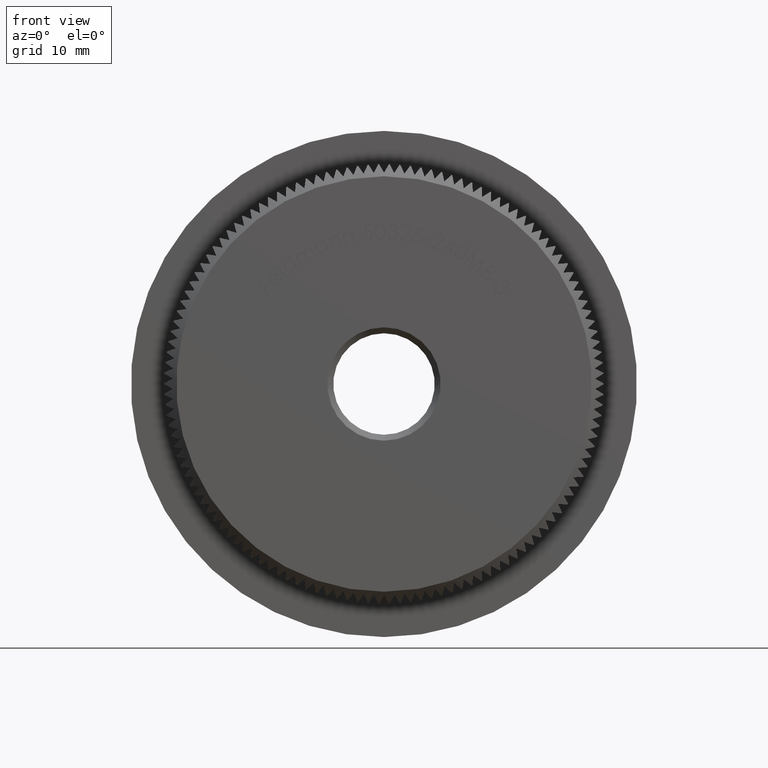
[diagram: clean part render]
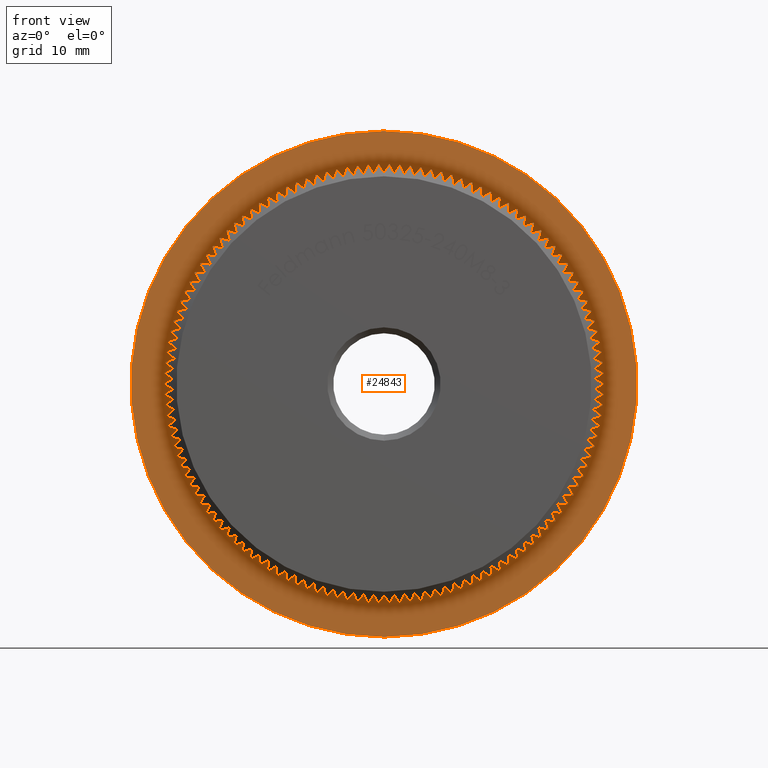
[diagram: same view with one face highlighted and labeled with its STEP entity id]
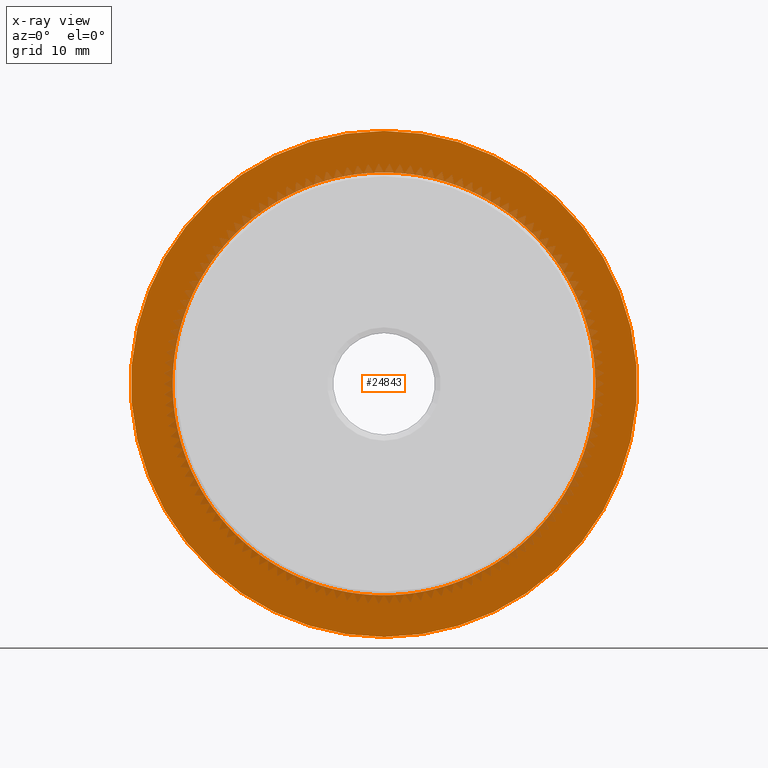
[diagram: x-ray of the same camera — body ghosted, the highlighted face saturated]
A machine part, front view. The second image highlights one B-rep face of the part: STEP entity #24843.
The next image is the same camera in x-ray: the body ghosted, the highlighted face saturated — about 10% of this face is hidden behind the body in this view.
In plain terms, the highlighted planar face has unit normal (0, -1, -0).
Its self-contained STEP definition (entity closure, byte-faithful):
#5 = DIRECTION ( 'NONE',  ( -0.0000000000000000000, -1.000000000000000000, -0.0000000000000000000 ) ) ;
#16 = VERTEX_POINT ( 'NONE', #16508 ) ;
#54 = DIRECTION ( 'NONE',  ( 0.0000000000000000000, 0.0000000000000000000, -1.000000000000000000 ) ) ;
#130 = AXIS2_PLACEMENT_3D ( 'NONE', #10194, #12810, #30429 ) ;
#159 = DIRECTION ( 'NONE',  ( -0.0000000000000000000, -1.000000000000000000, -0.0000000000000000000 ) ) ;
#170 = VERTEX_POINT ( 'NONE', #32155 ) ;
#191 = AXIS2_PLACEMENT_3D ( 'NONE', #2901, #12937, #30867 ) ;
#220 = ORIENTED_EDGE ( 'NONE', *, *, #1867, .F. ) ;
#230 = AXIS2_PLACEMENT_3D ( 'NONE', #30510, #8056, #17849 ) ;
#232 = CIRCLE ( 'NONE', #191, 17.69999999999999900 ) ;
#245 = CARTESIAN_POINT ( 'NONE',  ( 0.0000000000000000000, 8.000000000000001800, 0.0000000000000000000 ) ) ;
#247 = ORIENTED_EDGE ( 'NONE', *, *, #31096, .F. ) ;
#252 = CARTESIAN_POINT ( 'NONE',  ( 0.0000000000000000000, 8.000000000000001800, 0.0000000000000000000 ) ) ;
#292 = CARTESIAN_POINT ( 'NONE',  ( 10.40379896557660000, 8.000000000000003600, 14.31960080043669600 ) ) ;
#293 = EDGE_CURVE ( 'NONE', #4475, #7590, #973, .T. ) ;
#324 = AXIS2_PLACEMENT_3D ( 'NONE', #2568, #17668, #20186 ) ;
#338 = DIRECTION ( 'NONE',  ( 0.0000000000000000000, 0.0000000000000000000, -1.000000000000000000 ) ) ;
#396 = VERTEX_POINT ( 'NONE', #30437 ) ;
#402 = CARTESIAN_POINT ( 'NONE',  ( 0.0000000000000000000, 8.000000000000001800, 0.0000000000000000000 ) ) ;
#403 = DIRECTION ( 'NONE',  ( 0.0000000000000000000, 0.0000000000000000000, -1.000000000000000000 ) ) ;
#437 = EDGE_CURVE ( 'NONE', #6900, #3211, #23421, .T. ) ;
#470 = CARTESIAN_POINT ( 'NONE',  ( 13.52838825366138500, 8.000000000000003600, 11.41370716543037600 ) ) ;
#603 = CIRCLE ( 'NONE', #28679, 17.69999999999999900 ) ;
#613 = CARTESIAN_POINT ( 'NONE',  ( -5.061238507656811200, 7.999999999999998200, 16.96095117523223900 ) ) ;
#654 = CARTESIAN_POINT ( 'NONE',  ( 0.0000000000000000000, 8.000000000000001800, 0.0000000000000000000 ) ) ;
#661 = AXIS2_PLACEMENT_3D ( 'NONE', #15793, #27783, #18314 ) ;
#663 = CARTESIAN_POINT ( 'NONE',  ( 2.557456177375347000, 7.999999999999992900, -17.51426327028358900 ) ) ;
#700 = AXIS2_PLACEMENT_3D ( 'NONE', #13397, #26049, #13186 ) ;
#741 = DIRECTION ( 'NONE',  ( 0.0000000000000000000, 0.0000000000000000000, -1.000000000000000000 ) ) ;
#769 = DIRECTION ( 'NONE',  ( 0.0000000000000000000, 0.0000000000000000000, -1.000000000000000000 ) ) ;
#788 = CIRCLE ( 'NONE', #4331, 17.69999999999999900 ) ;
#805 = CARTESIAN_POINT ( 'NONE',  ( 0.0000000000000000000, 8.000000000000003600, -17.69999999999999900 ) ) ;
#835 = CARTESIAN_POINT ( 'NONE',  ( 0.0000000000000000000, 8.000000000000001800, 0.0000000000000000000 ) ) ;
#836 = ORIENTED_EDGE ( 'NONE', *, *, #11688, .F. ) ;
#866 = DIRECTION ( 'NONE',  ( -0.0000000000000000000, -1.000000000000000000, -0.0000000000000000000 ) ) ;
#884 = DIRECTION ( 'NONE',  ( -0.0000000000000000000, -1.000000000000000000, -0.0000000000000000000 ) ) ;
#905 = VERTEX_POINT ( 'NONE', #21331 ) ;
#936 = AXIS2_PLACEMENT_3D ( 'NONE', #1174, #11212, #13728 ) ;
#969 = ORIENTED_EDGE ( 'NONE', *, *, #19693, .F. ) ;
#973 = CIRCLE ( 'NONE', #12586, 17.69999999999999900 ) ;
#1002 = AXIS2_PLACEMENT_3D ( 'NONE', #23574, #26405, #3634 ) ;
#1013 = ORIENTED_EDGE ( 'NONE', *, *, #16728, .F. ) ;
#1038 = AXIS2_PLACEMENT_3D ( 'NONE', #7170, #6838, #19275 ) ;
#1067 = ORIENTED_EDGE ( 'NONE', *, *, #28686, .F. ) ;
#1091 = CARTESIAN_POINT ( 'NONE',  ( 0.0000000000000000000, 8.000000000000001800, 0.0000000000000000000 ) ) ;
#1102 = DIRECTION ( 'NONE',  ( -0.0000000000000000000, -1.000000000000000000, -0.0000000000000000000 ) ) ;
#1125 = DIRECTION ( 'NONE',  ( 0.0000000000000000000, 0.0000000000000000000, -1.000000000000000000 ) ) ;
#1166 = CARTESIAN_POINT ( 'NONE',  ( -12.96115539878053000, 8.000000000000003600, -12.05398070052637700 ) ) ;
#1174 = CARTESIAN_POINT ( 'NONE',  ( 0.0000000000000000000, 8.000000000000001800, 0.0000000000000000000 ) ) ;
#1180 = CARTESIAN_POINT ( 'NONE',  ( 16.54978749553190200, 8.000000000000003600, -6.276506500652724100 ) ) ;
#1193 = CARTESIAN_POINT ( 'NONE',  ( 12.36365116490603500, 8.000000000000003600, 12.66610160517109000 ) ) ;
#1225 = CIRCLE ( 'NONE', #3124, 17.69999999999999900 ) ;
#1261 = CARTESIAN_POINT ( 'NONE',  ( 11.73727105086219100, 8.000000000000003600, -13.24864024262838800 ) ) ;
#1295 = CARTESIAN_POINT ( 'NONE',  ( 0.0000000000000000000, 8.000000000000001800, 0.0000000000000000000 ) ) ;
#1317 = EDGE_CURVE ( 'NONE', #15577, #3816, #11986, .T. ) ;
#1335 = DIRECTION ( 'NONE',  ( 0.0000000000000000000, 0.0000000000000000000, -1.000000000000000000 ) ) ;
#1354 = DIRECTION ( 'NONE',  ( 0.0000000000000000000, -1.000000000000000000, -0.0000000000000000000 ) ) ;
#1372 = VERTEX_POINT ( 'NONE', #5274 ) ;
#1393 = EDGE_LOOP ( 'NONE', ( #7443, #16120, #3215, #31671, #20010, #11306, #28163, #15723, #9013, #32528, #6269, #6959, #23960, #6004, #23208, #29699, #22758, #23748, #3286, #12375, #18120, #18890, #21818, #28894, #7337, #17576, #25637, #1650, #26101, #8167, #1067, #16100, #15487, #4313, #1013, #247, #17476, #23105, #8910, #29234, #29735, #3272, #30934, #2216, #9655, #969, #20831, #5874, #23848, #13402, #17290, #15746, #220, #14543, #1683, #1919, #6325, #8890, #2524, #31453, #4614, #7024, #11062, #12663, #24878, #10831, #11541, #10808, #20564, #13743, #23165, #4821, #32520, #12712, #3040, #13974, #9031, #12139, #8946, #12697, #26417, #3838, #14961, #836, #25117, #31465, #5904, #10481, #15857, #28431, #24731, #9017, #23797, #14147, #32564, #2153, #28666, #12952, #18944, #4150, #24461, #32130, #2116, #13102, #31799, #31351, #18988, #2433, #13661, #1406, #8779, #3899, #16391, #6627, #7413, #3642, #26310, #15819, #19944, #30049, #26445, #12832, #22484, #3903, #3083, #29123, #25926, #14452, #14622, #30143 ) ) ;
#1396 = CIRCLE ( 'NONE', #4119, 17.69999999999999900 ) ;
#1406 = ORIENTED_EDGE ( 'NONE', *, *, #18497, .F. ) ;
#1479 = CARTESIAN_POINT ( 'NONE',  ( 0.0000000000000000000, 8.000000000000001800, 0.0000000000000000000 ) ) ;
#1550 = CARTESIAN_POINT ( 'NONE',  ( -3.400642897160646600, 7.999999999999992900, 17.37025123266762000 ) ) ;
#1596 = DIRECTION ( 'NONE',  ( -0.0000000000000000000, -1.000000000000000000, -0.0000000000000000000 ) ) ;
#1608 = CIRCLE ( 'NONE', #19081, 17.69999999999999900 ) ;
#1650 = ORIENTED_EDGE ( 'NONE', *, *, #4626, .F. ) ;
#1677 = DIRECTION ( 'NONE',  ( -0.0000000000000000000, -1.000000000000000000, -0.0000000000000000000 ) ) ;
#1683 = ORIENTED_EDGE ( 'NONE', *, *, #13215, .F. ) ;
#1695 = CARTESIAN_POINT ( 'NONE',  ( 0.0000000000000000000, 8.000000000000001800, 0.0000000000000000000 ) ) ;
#1711 = DIRECTION ( 'NONE',  ( 0.0000000000000000000, 0.0000000000000000000, -1.000000000000000000 ) ) ;
#1794 = DIRECTION ( 'NONE',  ( -0.0000000000000000000, -1.000000000000000000, -0.0000000000000000000 ) ) ;
#1813 = AXIS2_PLACEMENT_3D ( 'NONE', #245, #25451, #27978 ) ;
#1832 = DIRECTION ( 'NONE',  ( -0.0000000000000000000, -1.000000000000000000, -0.0000000000000000000 ) ) ;
#1833 = CARTESIAN_POINT ( 'NONE',  ( 0.0000000000000000000, 8.000000000000001800, 0.0000000000000000000 ) ) ;
#1859 = CARTESIAN_POINT ( 'NONE',  ( 0.0000000000000000000, 8.000000000000001800, 0.0000000000000000000 ) ) ;
#1867 = EDGE_CURVE ( 'NONE', #14029, #21604, #20231, .T. ) ;
#1919 = ORIENTED_EDGE ( 'NONE', *, *, #11017, .F. ) ;
#1921 = AXIS2_PLACEMENT_3D ( 'NONE', #1695, #21848, #32102 ) ;
#1976 = CARTESIAN_POINT ( 'NONE',  ( 0.0000000000000000000, 8.000000000000001800, 0.0000000000000000000 ) ) ;
#1985 = EDGE_CURVE ( 'NONE', #11659, #6425, #21009, .T. ) ;
#2008 = CARTESIAN_POINT ( 'NONE',  ( 17.69483184921941200, 8.000000000000003600, 0.4276982906797280900 ) ) ;
#2073 = CARTESIAN_POINT ( 'NONE',  ( 0.0000000000000000000, 8.000000000000003600, 17.69999999999999900 ) ) ;
#2087 = CARTESIAN_POINT ( 'NONE',  ( 16.22722185710357600, 7.999999999999998200, -7.068753129112660200 ) ) ;
#2106 = DIRECTION ( 'NONE',  ( -0.0000000000000000000, -1.000000000000000000, -0.0000000000000000000 ) ) ;
#2116 = ORIENTED_EDGE ( 'NONE', *, *, #22963, .F. ) ;
#2130 = EDGE_CURVE ( 'NONE', #11053, #28156, #6051, .T. ) ;
#2132 = DIRECTION ( 'NONE',  ( 0.0000000000000000000, 0.0000000000000000000, -1.000000000000000000 ) ) ;
#2145 = CIRCLE ( 'NONE', #19032, 17.69999999999999900 ) ;
#2153 = ORIENTED_EDGE ( 'NONE', *, *, #28232, .F. ) ;
#2154 = CARTESIAN_POINT ( 'NONE',  ( 0.0000000000000000000, 8.000000000000001800, 0.0000000000000000000 ) ) ;
#2178 = CIRCLE ( 'NONE', #12303, 17.69999999999999900 ) ;
#2216 = ORIENTED_EDGE ( 'NONE', *, *, #7252, .F. ) ;
#2227 = DIRECTION ( 'NONE',  ( 0.0000000000000000000, 0.0000000000000000000, -1.000000000000000000 ) ) ;
#2327 = DIRECTION ( 'NONE',  ( 0.0000000000000000000, 0.0000000000000000000, -1.000000000000000000 ) ) ;
#2409 = VERTEX_POINT ( 'NONE', #9769 ) ;
#2433 = ORIENTED_EDGE ( 'NONE', *, *, #26224, .F. ) ;
#2437 = DIRECTION ( 'NONE',  ( 0.0000000000000000000, 0.0000000000000000000, -1.000000000000000000 ) ) ;
#2446 = VERTEX_POINT ( 'NONE', #9423 ) ;
#2477 = DIRECTION ( 'NONE',  ( -0.0000000000000000000, -1.000000000000000000, -0.0000000000000000000 ) ) ;
#2486 = VERTEX_POINT ( 'NONE', #17026 ) ;
#2523 = VERTEX_POINT ( 'NONE', #32673 ) ;
#2524 = ORIENTED_EDGE ( 'NONE', *, *, #26228, .F. ) ;
#2532 = DIRECTION ( 'NONE',  ( 0.0000000000000000000, 0.0000000000000000000, -1.000000000000000000 ) ) ;
#2552 = CARTESIAN_POINT ( 'NONE',  ( 0.0000000000000000000, 8.000000000000001800, 0.0000000000000000000 ) ) ;
#2566 = EDGE_CURVE ( 'NONE', #13757, #21930, #18235, .T. ) ;
#2569 = DIRECTION ( 'NONE',  ( -0.0000000000000000000, -1.000000000000000000, -0.0000000000000000000 ) ) ;
#2568 = CARTESIAN_POINT ( 'NONE',  ( 0.0000000000000000000, 8.000000000000001800, 0.0000000000000000000 ) ) ;
#2582 = CIRCLE ( 'NONE', #18990, 17.69999999999999900 ) ;
#2616 = EDGE_CURVE ( 'NONE', #18126, #12483, #13121, .T. ) ;
#2618 = CARTESIAN_POINT ( 'NONE',  ( 0.0000000000000000000, 8.000000000000001800, 0.0000000000000000000 ) ) ;
#2699 = AXIS2_PLACEMENT_3D ( 'NONE', #8738, #31509, #3552 ) ;
#2706 = DIRECTION ( 'NONE',  ( 0.0000000000000000000, 0.0000000000000000000, -1.000000000000000000 ) ) ;
#2736 = EDGE_CURVE ( 'NONE', #15381, #13168, #4870, .T. ) ;
#2751 = VERTEX_POINT ( 'NONE', #8955 ) ;
#2821 = AXIS2_PLACEMENT_3D ( 'NONE', #11637, #6795, #29230 ) ;
#2824 = VERTEX_POINT ( 'NONE', #24345 ) ;
#2853 = CARTESIAN_POINT ( 'NONE',  ( 0.0000000000000000000, 8.000000000000001800, 0.0000000000000000000 ) ) ;
#2901 = CARTESIAN_POINT ( 'NONE',  ( 0.0000000000000000000, 8.000000000000001800, 0.0000000000000000000 ) ) ;
#2905 = VERTEX_POINT ( 'NONE', #21813 ) ;
#2912 = CARTESIAN_POINT ( 'NONE',  ( 0.0000000000000000000, 8.000000000000001800, 0.0000000000000000000 ) ) ;
#3005 = EDGE_LOOP ( 'NONE', ( #7900, #8116 ) ) ;
#3040 = ORIENTED_EDGE ( 'NONE', *, *, #14261, .F. ) ;
#3067 = DIRECTION ( 'NONE',  ( -0.0000000000000000000, -1.000000000000000000, -0.0000000000000000000 ) ) ;
#3083 = ORIENTED_EDGE ( 'NONE', *, *, #12746, .F. ) ;
#3097 = EDGE_CURVE ( 'NONE', #13969, #10927, #12309, .T. ) ;
#3124 = AXIS2_PLACEMENT_3D ( 'NONE', #26009, #21065, #28432 ) ;
#3144 = AXIS2_PLACEMENT_3D ( 'NONE', #1859, #21668, #12109 ) ;
#3158 = CARTESIAN_POINT ( 'NONE',  ( 0.0000000000000000000, 8.000000000000001800, 0.0000000000000000000 ) ) ;
#3183 = EDGE_CURVE ( 'NONE', #16341, #29339, #5631, .T. ) ;
#3211 = VERTEX_POINT ( 'NONE', #31486 ) ;
#3215 = ORIENTED_EDGE ( 'NONE', *, *, #20549, .F. ) ;
#3218 = DIRECTION ( 'NONE',  ( 0.0000000000000000000, 0.0000000000000000000, -1.000000000000000000 ) ) ;
#3272 = ORIENTED_EDGE ( 'NONE', *, *, #17591, .F. ) ;
#3277 = CIRCLE ( 'NONE', #17312, 17.69999999999999900 ) ;
#3278 = DIRECTION ( 'NONE',  ( 0.0000000000000000000, 0.0000000000000000000, -1.000000000000000000 ) ) ;
#3285 = DIRECTION ( 'NONE',  ( 0.0000000000000000000, 0.0000000000000000000, -1.000000000000000000 ) ) ;
#3286 = ORIENTED_EDGE ( 'NONE', *, *, #19791, .F. ) ;
#3346 = DIRECTION ( 'NONE',  ( -0.0000000000000000000, -1.000000000000000000, -0.0000000000000000000 ) ) ;
#3367 = CIRCLE ( 'NONE', #1921, 17.69999999999999900 ) ;
#3383 = CARTESIAN_POINT ( 'NONE',  ( 17.28300709527815500, 8.000000000000007100, -3.819380282789998300 ) ) ;
#3406 = CARTESIAN_POINT ( 'NONE',  ( 0.0000000000000000000, 8.000000000000001800, 0.0000000000000000000 ) ) ;
#3484 = DIRECTION ( 'NONE',  ( -0.0000000000000000000, -1.000000000000000000, -0.0000000000000000000 ) ) ;
#3505 = DIRECTION ( 'NONE',  ( 0.0000000000000000000, 0.0000000000000000000, -1.000000000000000000 ) ) ;
#3552 = DIRECTION ( 'NONE',  ( 0.0000000000000000000, 0.0000000000000000000, -1.000000000000000000 ) ) ;
#3567 = EDGE_CURVE ( 'NONE', #8345, #5368, #1225, .T. ) ;
#3572 = AXIS2_PLACEMENT_3D ( 'NONE', #654, #866, #13314 ) ;
#3634 = DIRECTION ( 'NONE',  ( 0.0000000000000000000, 0.0000000000000000000, -1.000000000000000000 ) ) ;
#3642 = ORIENTED_EDGE ( 'NONE', *, *, #21777, .F. ) ;
#3651 = EDGE_CURVE ( 'NONE', #21868, #18064, #13061, .T. ) ;
#3703 = CIRCLE ( 'NONE', #25747, 17.69999999999999900 ) ;
#3784 = VERTEX_POINT ( 'NONE', #18759 ) ;
#3816 = VERTEX_POINT ( 'NONE', #17106 ) ;
#3823 = EDGE_CURVE ( 'NONE', #905, #20806, #11477, .T. ) ;
#3838 = ORIENTED_EDGE ( 'NONE', *, *, #30757, .F. ) ;
#3877 = DIRECTION ( 'NONE',  ( -0.0000000000000000000, -1.000000000000000000, -0.0000000000000000000 ) ) ;
#3899 = ORIENTED_EDGE ( 'NONE', *, *, #21506, .F. ) ;
#3903 = ORIENTED_EDGE ( 'NONE', *, *, #20499, .F. ) ;
#3918 = DIRECTION ( 'NONE',  ( 0.0000000000000000000, 0.0000000000000000000, -1.000000000000000000 ) ) ;
#3985 = CIRCLE ( 'NONE', #18889, 17.69999999999999900 ) ;
#4010 = DIRECTION ( 'NONE',  ( 0.0000000000000000000, 0.0000000000000000000, -1.000000000000000000 ) ) ;
#4060 = DIRECTION ( 'NONE',  ( -0.0000000000000000000, -1.000000000000000000, -0.0000000000000000000 ) ) ;
#4072 = AXIS2_PLACEMENT_3D ( 'NONE', #18670, #16247, #20983 ) ;
#4119 = AXIS2_PLACEMENT_3D ( 'NONE', #5825, #25933, #10895 ) ;
#4150 = ORIENTED_EDGE ( 'NONE', *, *, #17812, .F. ) ;
#4151 = DIRECTION ( 'NONE',  ( 0.0000000000000000000, 0.0000000000000000000, -1.000000000000000000 ) ) ;
#4188 = CIRCLE ( 'NONE', #32515, 17.69999999999999900 ) ;
#4191 = AXIS2_PLACEMENT_3D ( 'NONE', #1976, #4515, #22360 ) ;
#4204 = VERTEX_POINT ( 'NONE', #13080 ) ;
#4225 = DIRECTION ( 'NONE',  ( 0.0000000000000000000, 0.0000000000000000000, -1.000000000000000000 ) ) ;
#4239 = AXIS2_PLACEMENT_3D ( 'NONE', #17614, #25076, #14855 ) ;
#4250 = DIRECTION ( 'NONE',  ( 0.0000000000000000000, 0.0000000000000000000, -1.000000000000000000 ) ) ;
#4262 = DIRECTION ( 'NONE',  ( -0.0000000000000000000, -1.000000000000000000, -0.0000000000000000000 ) ) ;
#4277 = CIRCLE ( 'NONE', #23586, 17.69999999999999900 ) ;
#4297 = EDGE_CURVE ( 'NONE', #30553, #12365, #23270, .T. ) ;
#4313 = ORIENTED_EDGE ( 'NONE', *, *, #31660, .F. ) ;
#4331 = AXIS2_PLACEMENT_3D ( 'NONE', #29471, #11534, #4151 ) ;
#4364 = DIRECTION ( 'NONE',  ( 0.0000000000000000000, 0.0000000000000000000, -1.000000000000000000 ) ) ;
#4381 = EDGE_CURVE ( 'NONE', #30597, #19133, #22481, .T. ) ;
#4422 = EDGE_CURVE ( 'NONE', #31791, #10990, #6322, .T. ) ;
#4475 = VERTEX_POINT ( 'NONE', #29219 ) ;
#4499 = CIRCLE ( 'NONE', #17331, 17.69999999999999900 ) ;
#4515 = DIRECTION ( 'NONE',  ( -0.0000000000000000000, -1.000000000000000000, -0.0000000000000000000 ) ) ;
#4543 = CARTESIAN_POINT ( 'NONE',  ( 3.400642897160769200, 8.000000000000003600, -17.37025123266759200 ) ) ;
#4602 = CARTESIAN_POINT ( 'NONE',  ( -17.65350474953939800, 8.000000000000007100, 1.282095962863135900 ) ) ;
#4614 = ORIENTED_EDGE ( 'NONE', *, *, #18994, .F. ) ;
#4617 = DIRECTION ( 'NONE',  ( -0.0000000000000000000, -1.000000000000000000, -0.0000000000000000000 ) ) ;
#4626 = EDGE_CURVE ( 'NONE', #16956, #5276, #8310, .T. ) ;
#4655 = EDGE_CURVE ( 'NONE', #22338, #9995, #29977, .T. ) ;
#4692 = AXIS2_PLACEMENT_3D ( 'NONE', #7870, #8086, #3218 ) ;
#4708 = CARTESIAN_POINT ( 'NONE',  ( -0.8551468176013543600, 7.999999999999998200, -17.67933041493218800 ) ) ;
#4794 = DIRECTION ( 'NONE',  ( 0.0000000000000000000, 0.0000000000000000000, -1.000000000000000000 ) ) ;
#4818 = DIRECTION ( 'NONE',  ( -0.0000000000000000000, -1.000000000000000000, -0.0000000000000000000 ) ) ;
#4821 = ORIENTED_EDGE ( 'NONE', *, *, #25958, .F. ) ;
#4857 = AXIS2_PLACEMENT_3D ( 'NONE', #13078, #15399, #20452 ) ;
#4870 = CIRCLE ( 'NONE', #2699, 21.19999999999999900 ) ;
#4916 = DIRECTION ( 'NONE',  ( 0.0000000000000000000, 0.0000000000000000000, -1.000000000000000000 ) ) ;
#4936 = VERTEX_POINT ( 'NONE', #7458 ) ;
#4979 = DIRECTION ( 'NONE',  ( 0.0000000000000000000, 0.0000000000000000000, -1.000000000000000000 ) ) ;
#5039 = CIRCLE ( 'NONE', #10152, 17.69999999999999900 ) ;
#5087 = CARTESIAN_POINT ( 'NONE',  ( 0.0000000000000000000, 8.000000000000001800, 0.0000000000000000000 ) ) ;
#5093 = AXIS2_PLACEMENT_3D ( 'NONE', #25160, #159, #54 ) ;
#5101 = CARTESIAN_POINT ( 'NONE',  ( 0.0000000000000000000, 8.000000000000001800, 0.0000000000000000000 ) ) ;
#5160 = DIRECTION ( 'NONE',  ( 0.0000000000000000000, 0.0000000000000000000, -1.000000000000000000 ) ) ;
#5165 = DIRECTION ( 'NONE',  ( 0.0000000000000000000, 0.0000000000000000000, -1.000000000000000000 ) ) ;
#5176 = EDGE_CURVE ( 'NONE', #11562, #24775, #22473, .T. ) ;
#5193 = CIRCLE ( 'NONE', #10041, 17.69999999999999900 ) ;
#5208 = CARTESIAN_POINT ( 'NONE',  ( 7.458799607573560300, 8.000000000000003600, 16.05167618705475300 ) ) ;
#5218 = AXIS2_PLACEMENT_3D ( 'NONE', #16157, #15845, #3285 ) ;
#5274 = CARTESIAN_POINT ( 'NONE',  ( -10.40379896557679600, 7.999999999999992900, 14.31960080043655900 ) ) ;
#5276 = VERTEX_POINT ( 'NONE', #25891 ) ;
#5278 = VERTEX_POINT ( 'NONE', #23056 ) ;
#5308 = VERTEX_POINT ( 'NONE', #470 ) ;
#5323 = CARTESIAN_POINT ( 'NONE',  ( 0.0000000000000000000, 8.000000000000001800, 0.0000000000000000000 ) ) ;
#5368 = VERTEX_POINT ( 'NONE', #21370 ) ;
#5376 = AXIS2_PLACEMENT_3D ( 'NONE', #24325, #16513, #6501 ) ;
#5382 = VERTEX_POINT ( 'NONE', #16199 ) ;
#5389 = DIRECTION ( 'NONE',  ( -0.0000000000000000000, -1.000000000000000000, -0.0000000000000000000 ) ) ;
#5400 = EDGE_CURVE ( 'NONE', #4204, #20712, #15096, .T. ) ;
#5436 = EDGE_CURVE ( 'NONE', #17041, #7281, #20175, .T. ) ;
#5439 = EDGE_CURVE ( 'NONE', #19210, #25894, #26777, .T. ) ;
#5453 = CIRCLE ( 'NONE', #19388, 17.69999999999999900 ) ;
#5475 = DIRECTION ( 'NONE',  ( 0.0000000000000000000, 0.0000000000000000000, -1.000000000000000000 ) ) ;
#5492 = CIRCLE ( 'NONE', #18448, 17.69999999999999900 ) ;
#5512 = CARTESIAN_POINT ( 'NONE',  ( -15.03558245165088000, 8.000000000000003600, -9.339232320678618700 ) ) ;
#5594 = DIRECTION ( 'NONE',  ( 0.0000000000000000000, 0.0000000000000000000, -1.000000000000000000 ) ) ;
#5616 = DIRECTION ( 'NONE',  ( 0.0000000000000000000, 0.0000000000000000000, -1.000000000000000000 ) ) ;
#5631 = CIRCLE ( 'NONE', #13433, 17.69999999999999900 ) ;
#5658 = EDGE_CURVE ( 'NONE', #5278, #7442, #19488, .T. ) ;
#5825 = CARTESIAN_POINT ( 'NONE',  ( 0.0000000000000000000, 8.000000000000001800, 0.0000000000000000000 ) ) ;
#5846 = CIRCLE ( 'NONE', #9704, 17.69999999999999900 ) ;
#5874 = ORIENTED_EDGE ( 'NONE', *, *, #5658, .F. ) ;
#5887 = CIRCLE ( 'NONE', #12532, 17.69999999999999900 ) ;
#5892 = DIRECTION ( 'NONE',  ( 0.0000000000000000000, 0.0000000000000000000, -1.000000000000000000 ) ) ;
#5904 = ORIENTED_EDGE ( 'NONE', *, *, #32017, .F. ) ;
#6004 = ORIENTED_EDGE ( 'NONE', *, *, #30359, .F. ) ;
#6015 = AXIS2_PLACEMENT_3D ( 'NONE', #22503, #7439, #24800 ) ;
#6045 = DIRECTION ( 'NONE',  ( -0.0000000000000000000, -1.000000000000000000, -0.0000000000000000000 ) ) ;
#6051 = CIRCLE ( 'NONE', #29451, 17.69999999999999900 ) ;
#6173 = VERTEX_POINT ( 'NONE', #9846 ) ;
#6189 = CIRCLE ( 'NONE', #1813, 17.69999999999999900 ) ;
#6262 = DIRECTION ( 'NONE',  ( -0.0000000000000000000, -1.000000000000000000, -0.0000000000000000000 ) ) ;
#6269 = ORIENTED_EDGE ( 'NONE', *, *, #18908, .F. ) ;
#6322 = CIRCLE ( 'NONE', #30149, 17.69999999999999900 ) ;
#6325 = ORIENTED_EDGE ( 'NONE', *, *, #25505, .F. ) ;
#6348 = CARTESIAN_POINT ( 'NONE',  ( -8.973189412500460100, 8.000000000000003600, -15.25686310377692600 ) ) ;
#6351 = DIRECTION ( 'NONE',  ( 0.0000000000000000000, 0.0000000000000000000, -1.000000000000000000 ) ) ;
#6425 = VERTEX_POINT ( 'NONE', #11555 ) ;
#6435 = DIRECTION ( 'NONE',  ( -0.0000000000000000000, -1.000000000000000000, -0.0000000000000000000 ) ) ;
#6456 = CIRCLE ( 'NONE', #15013, 17.69999999999999900 ) ;
#6475 = DIRECTION ( 'NONE',  ( -0.0000000000000000000, -1.000000000000000000, -0.0000000000000000000 ) ) ;
#6498 = AXIS2_PLACEMENT_3D ( 'NONE', #26546, #21280, #8962 ) ;
#6501 = DIRECTION ( 'NONE',  ( 0.0000000000000000000, 0.0000000000000000000, -1.000000000000000000 ) ) ;
#6527 = DIRECTION ( 'NONE',  ( 0.0000000000000000000, 0.0000000000000000000, -1.000000000000000000 ) ) ;
#6543 = CARTESIAN_POINT ( 'NONE',  ( 0.0000000000000000000, 8.000000000000001800, 0.0000000000000000000 ) ) ;
#6627 = ORIENTED_EDGE ( 'NONE', *, *, #9361, .F. ) ;
#6647 = CARTESIAN_POINT ( 'NONE',  ( 0.0000000000000000000, 8.000000000000001800, 0.0000000000000000000 ) ) ;
#6716 = CARTESIAN_POINT ( 'NONE',  ( -13.52838825366153900, 8.000000000000003600, 11.41370716543019400 ) ) ;
#6795 = DIRECTION ( 'NONE',  ( -0.0000000000000000000, -1.000000000000000000, -0.0000000000000000000 ) ) ;
#6838 = DIRECTION ( 'NONE',  ( -0.0000000000000000000, -1.000000000000000000, -0.0000000000000000000 ) ) ;
#6843 = AXIS2_PLACEMENT_3D ( 'NONE', #1295, #24307, #24088 ) ;
#6900 = VERTEX_POINT ( 'NONE', #11204 ) ;
#6919 = VERTEX_POINT ( 'NONE', #1166 ) ;
#6959 = ORIENTED_EDGE ( 'NONE', *, *, #437, .F. ) ;
#6971 = CARTESIAN_POINT ( 'NONE',  ( 2.596251214192388800E-015, 8.000000000000000000, 21.19999999999999900 ) ) ;
#7020 = CARTESIAN_POINT ( 'NONE',  ( -11.08347799642817200, 8.000000000000003600, 13.80023606691902100 ) ) ;
#7024 = ORIENTED_EDGE ( 'NONE', *, *, #13087, .F. ) ;
#7107 = DIRECTION ( 'NONE',  ( 0.0000000000000000000, 0.0000000000000000000, -1.000000000000000000 ) ) ;
#7112 = EDGE_CURVE ( 'NONE', #16, #6900, #3277, .T. ) ;
#7134 = CARTESIAN_POINT ( 'NONE',  ( 0.0000000000000000000, 8.000000000000001800, 0.0000000000000000000 ) ) ;
#7170 = CARTESIAN_POINT ( 'NONE',  ( 0.0000000000000000000, 8.000000000000001800, 0.0000000000000000000 ) ) ;
#7191 = CARTESIAN_POINT ( 'NONE',  ( -16.83370033842423700, 7.999999999999992900, 5.469600800436523100 ) ) ;
#7193 = DIRECTION ( 'NONE',  ( -0.0000000000000000000, -1.000000000000000000, -0.0000000000000000000 ) ) ;
#7200 = EDGE_CURVE ( 'NONE', #32229, #13757, #18620, .T. ) ;
#7240 = DIRECTION ( 'NONE',  ( -0.0000000000000000000, -1.000000000000000000, -0.0000000000000000000 ) ) ;
#7248 = CARTESIAN_POINT ( 'NONE',  ( 17.65350474953940800, 8.000000000000003600, -1.282095962863012600 ) ) ;
#7252 = EDGE_CURVE ( 'NONE', #4936, #18652, #21368, .T. ) ;
#7281 = VERTEX_POINT ( 'NONE', #16450 ) ;
#7285 = CARTESIAN_POINT ( 'NONE',  ( 1.708296400186676100, 8.000000000000007100, 17.61736993450240300 ) ) ;
#7296 = CIRCLE ( 'NONE', #14151, 17.69999999999999900 ) ;
#7302 = CARTESIAN_POINT ( 'NONE',  ( 0.0000000000000000000, 8.000000000000001800, 0.0000000000000000000 ) ) ;
#7329 = CIRCLE ( 'NONE', #10790, 17.69999999999999900 ) ;
#7332 = AXIS2_PLACEMENT_3D ( 'NONE', #15108, #27855, #17851 ) ;
#7337 = ORIENTED_EDGE ( 'NONE', *, *, #16240, .F. ) ;
#7345 = CARTESIAN_POINT ( 'NONE',  ( 4.235887257889543500, 8.000000000000003600, 17.18567016844117700 ) ) ;
#7346 = AXIS2_PLACEMENT_3D ( 'NONE', #20223, #5389, #5160 ) ;
#7413 = ORIENTED_EDGE ( 'NONE', *, *, #5436, .F. ) ;
#7439 = DIRECTION ( 'NONE',  ( -0.0000000000000000000, -1.000000000000000000, -0.0000000000000000000 ) ) ;
#7442 = VERTEX_POINT ( 'NONE', #11830 ) ;
#7443 = ORIENTED_EDGE ( 'NONE', *, *, #30825, .F. ) ;
#7446 = AXIS2_PLACEMENT_3D ( 'NONE', #7302, #7193, #17651 ) ;
#7458 = CARTESIAN_POINT ( 'NONE',  ( 15.46923417748944600, 8.000000000000007100, -8.601906414393987200 ) ) ;
#7582 = VERTEX_POINT ( 'NONE', #18182 ) ;
#7583 = AXIS2_PLACEMENT_3D ( 'NONE', #30815, #3067, #3278 ) ;
#7589 = CARTESIAN_POINT ( 'NONE',  ( 0.0000000000000000000, 8.000000000000001800, 0.0000000000000000000 ) ) ;
#7590 = VERTEX_POINT ( 'NONE', #25235 ) ;
#7674 = DIRECTION ( 'NONE',  ( 0.0000000000000000000, 0.0000000000000000000, -1.000000000000000000 ) ) ;
#7676 = AXIS2_PLACEMENT_3D ( 'NONE', #20100, #17792, #25367 ) ;
#7773 = DIRECTION ( 'NONE',  ( -0.0000000000000000000, -1.000000000000000000, -0.0000000000000000000 ) ) ;
#7807 = DIRECTION ( 'NONE',  ( 0.0000000000000000000, 0.0000000000000000000, -1.000000000000000000 ) ) ;
#7870 = CARTESIAN_POINT ( 'NONE',  ( 0.0000000000000000000, 8.000000000000001800, 0.0000000000000000000 ) ) ;
#7876 = CARTESIAN_POINT ( 'NONE',  ( 0.0000000000000000000, 8.000000000000001800, 0.0000000000000000000 ) ) ;
#7888 = CARTESIAN_POINT ( 'NONE',  ( 0.0000000000000000000, 8.000000000000001800, 0.0000000000000000000 ) ) ;
#7889 = CARTESIAN_POINT ( 'NONE',  ( 0.0000000000000000000, 8.000000000000001800, 0.0000000000000000000 ) ) ;
#7900 = ORIENTED_EDGE ( 'NONE', *, *, #10260, .T. ) ;
#8056 = DIRECTION ( 'NONE',  ( -0.0000000000000000000, -1.000000000000000000, -0.0000000000000000000 ) ) ;
#8071 = VERTEX_POINT ( 'NONE', #20167 ) ;
#8086 = DIRECTION ( 'NONE',  ( -0.0000000000000000000, -1.000000000000000000, -0.0000000000000000000 ) ) ;
#8104 = CIRCLE ( 'NONE', #11229, 17.69999999999999900 ) ;
#8116 = ORIENTED_EDGE ( 'NONE', *, *, #2736, .T. ) ;
#8123 = DIRECTION ( 'NONE',  ( 0.0000000000000000000, 0.0000000000000000000, -1.000000000000000000 ) ) ;
#8167 = ORIENTED_EDGE ( 'NONE', *, *, #20077, .F. ) ;
#8210 = AXIS2_PLACEMENT_3D ( 'NONE', #30663, #10641, #23382 ) ;
#8247 = VERTEX_POINT ( 'NONE', #30630 ) ;
#8264 = CARTESIAN_POINT ( 'NONE',  ( 17.57094707153557800, 8.000000000000007100, -2.133499240519040300 ) ) ;
#8284 = CARTESIAN_POINT ( 'NONE',  ( -8.225600145174720300, 8.000000000000007100, 15.67257165406180500 ) ) ;
#8310 = CIRCLE ( 'NONE', #19381, 17.69999999999999900 ) ;
#8345 = VERTEX_POINT ( 'NONE', #28385 ) ;
#8356 = DIRECTION ( 'NONE',  ( 0.0000000000000000000, 0.0000000000000000000, -1.000000000000000000 ) ) ;
#8451 = AXIS2_PLACEMENT_3D ( 'NONE', #1479, #21312, #14031 ) ;
#8477 = CARTESIAN_POINT ( 'NONE',  ( -11.73727105086200400, 8.000000000000003600, -13.24864024262855200 ) ) ;
#8495 = CARTESIAN_POINT ( 'NONE',  ( -15.86675679013392300, 8.000000000000007100, -7.844490357106640700 ) ) ;
#8509 = CIRCLE ( 'NONE', #4191, 17.69999999999999900 ) ;
#8512 = VERTEX_POINT ( 'NONE', #29041 ) ;
#8517 = DIRECTION ( 'NONE',  ( 0.0000000000000000000, 0.0000000000000000000, -1.000000000000000000 ) ) ;
#8532 = DIRECTION ( 'NONE',  ( 0.0000000000000000000, 0.0000000000000000000, -1.000000000000000000 ) ) ;
#8658 = AXIS2_PLACEMENT_3D ( 'NONE', #22846, #4818, #30022 ) ;
#8738 = CARTESIAN_POINT ( 'NONE',  ( 0.0000000000000000000, 8.000000000000000000, 0.0000000000000000000 ) ) ;
#8779 = ORIENTED_EDGE ( 'NONE', *, *, #17550, .F. ) ;
#8800 = CARTESIAN_POINT ( 'NONE',  ( -10.40379896557669400, 8.000000000000003600, -14.31960080043662800 ) ) ;
#8840 = DIRECTION ( 'NONE',  ( -0.0000000000000000000, -1.000000000000000000, -0.0000000000000000000 ) ) ;
#8878 = CARTESIAN_POINT ( 'NONE',  ( 0.0000000000000000000, 8.000000000000001800, 0.0000000000000000000 ) ) ;
#8890 = ORIENTED_EDGE ( 'NONE', *, *, #23569, .F. ) ;
#8910 = ORIENTED_EDGE ( 'NONE', *, *, #3183, .F. ) ;
#8936 = CIRCLE ( 'NONE', #21297, 17.69999999999999900 ) ;
#8946 = ORIENTED_EDGE ( 'NONE', *, *, #16991, .F. ) ;
#8955 = CARTESIAN_POINT ( 'NONE',  ( -2.557456177375102300, 7.999999999999998200, -17.51426327028362500 ) ) ;
#8962 = DIRECTION ( 'NONE',  ( 0.0000000000000000000, 0.0000000000000000000, -1.000000000000000000 ) ) ;
#8964 = CARTESIAN_POINT ( 'NONE',  ( 0.0000000000000000000, 8.000000000000001800, 0.0000000000000000000 ) ) ;
#8978 = CARTESIAN_POINT ( 'NONE',  ( -5.874769000374851800, 7.999999999999998200, -16.69661909466209000 ) ) ;
#9013 = ORIENTED_EDGE ( 'NONE', *, *, #29806, .F. ) ;
#9017 = ORIENTED_EDGE ( 'NONE', *, *, #30648, .F. ) ;
#9031 = ORIENTED_EDGE ( 'NONE', *, *, #16472, .F. ) ;
#9051 = DIRECTION ( 'NONE',  ( -0.0000000000000000000, -1.000000000000000000, -0.0000000000000000000 ) ) ;
#9104 = CIRCLE ( 'NONE', #700, 17.69999999999999900 ) ;
#9105 = DIRECTION ( 'NONE',  ( 0.0000000000000000000, 0.0000000000000000000, -1.000000000000000000 ) ) ;
#9343 = AXIS2_PLACEMENT_3D ( 'NONE', #7134, #7240, #24724 ) ;
#9361 = EDGE_CURVE ( 'NONE', #7281, #16751, #18531, .T. ) ;
#9423 = CARTESIAN_POINT ( 'NONE',  ( -17.69483184921941900, 7.999999999999992900, -0.4276982906796046300 ) ) ;
#9444 = EDGE_CURVE ( 'NONE', #12365, #1372, #28752, .T. ) ;
#9479 = VERTEX_POINT ( 'NONE', #2008 ) ;
#9536 = DIRECTION ( 'NONE',  ( 0.0000000000000000000, 0.0000000000000000000, -1.000000000000000000 ) ) ;
#9594 = CIRCLE ( 'NONE', #15827, 17.69999999999999900 ) ;
#9637 = CARTESIAN_POINT ( 'NONE',  ( -16.22722185710353000, 7.999999999999989300, 7.068753129112772100 ) ) ;
#9655 = ORIENTED_EDGE ( 'NONE', *, *, #16839, .F. ) ;
#9667 = DIRECTION ( 'NONE',  ( 0.0000000000000000000, 0.0000000000000000000, -1.000000000000000000 ) ) ;
#9692 = CARTESIAN_POINT ( 'NONE',  ( 15.46923417748926800, 7.999999999999992900, 8.601906414394314000 ) ) ;
#9704 = AXIS2_PLACEMENT_3D ( 'NONE', #19073, #14102, #1335 ) ;
#9715 = AXIS2_PLACEMENT_3D ( 'NONE', #31891, #19335, #4250 ) ;
#9744 = CARTESIAN_POINT ( 'NONE',  ( 0.0000000000000000000, 8.000000000000001800, 0.0000000000000000000 ) ) ;
#9749 = DIRECTION ( 'NONE',  ( -0.0000000000000000000, -1.000000000000000000, -0.0000000000000000000 ) ) ;
#9769 = CARTESIAN_POINT ( 'NONE',  ( -12.36365116490611800, 8.000000000000003600, -12.66610160517101000 ) ) ;
#9797 = CIRCLE ( 'NONE', #14638, 17.69999999999999900 ) ;
#9846 = CARTESIAN_POINT ( 'NONE',  ( -16.54978749553181700, 8.000000000000003600, -6.276506500652951500 ) ) ;
#9864 = CARTESIAN_POINT ( 'NONE',  ( -17.07829729418084600, 7.999999999999992900, -4.649920594115058300 ) ) ;
#9995 = VERTEX_POINT ( 'NONE', #27798 ) ;
#10002 = DIRECTION ( 'NONE',  ( 0.0000000000000000000, 0.0000000000000000000, -1.000000000000000000 ) ) ;
#10010 = EDGE_CURVE ( 'NONE', #27940, #11211, #18566, .T. ) ;
#10027 = DIRECTION ( 'NONE',  ( 0.0000000000000000000, 0.0000000000000000000, -1.000000000000000000 ) ) ;
#10041 = AXIS2_PLACEMENT_3D ( 'NONE', #17806, #17601, #10002 ) ;
#10062 = CARTESIAN_POINT ( 'NONE',  ( 0.0000000000000000000, 8.000000000000001800, 0.0000000000000000000 ) ) ;
#10152 = AXIS2_PLACEMENT_3D ( 'NONE', #27022, #1832, #4364 ) ;
#10194 = CARTESIAN_POINT ( 'NONE',  ( 0.0000000000000000000, 8.000000000000001800, 0.0000000000000000000 ) ) ;
#10208 = VERTEX_POINT ( 'NONE', #20526 ) ;
#10260 = EDGE_CURVE ( 'NONE', #13168, #15381, #19340, .T. ) ;
#10311 = VERTEX_POINT ( 'NONE', #2087 ) ;
#10443 = CARTESIAN_POINT ( 'NONE',  ( 0.0000000000000000000, 8.000000000000001800, 0.0000000000000000000 ) ) ;
#10450 = CIRCLE ( 'NONE', #21772, 17.69999999999999900 ) ;
#10471 = CARTESIAN_POINT ( 'NONE',  ( 0.0000000000000000000, 8.000000000000001800, 0.0000000000000000000 ) ) ;
#10481 = ORIENTED_EDGE ( 'NONE', *, *, #18008, .F. ) ;
#10485 = CARTESIAN_POINT ( 'NONE',  ( 12.96115539878069700, 8.000000000000003600, -12.05398070052619600 ) ) ;
#10496 = EDGE_CURVE ( 'NONE', #10900, #14029, #9104, .T. ) ;
#10550 = CIRCLE ( 'NONE', #14894, 17.69999999999999900 ) ;
#10566 = DIRECTION ( 'NONE',  ( -0.0000000000000000000, -1.000000000000000000, -0.0000000000000000000 ) ) ;
#10600 = VERTEX_POINT ( 'NONE', #23637 ) ;
#10641 = DIRECTION ( 'NONE',  ( -0.0000000000000000000, -1.000000000000000000, -0.0000000000000000000 ) ) ;
#10661 = CARTESIAN_POINT ( 'NONE',  ( 0.0000000000000000000, 8.000000000000001800, 0.0000000000000000000 ) ) ;
#10686 = CARTESIAN_POINT ( 'NONE',  ( -12.36365116490620700, 8.000000000000003600, 12.66610160517092300 ) ) ;
#10701 = DIRECTION ( 'NONE',  ( 0.0000000000000000000, 0.0000000000000000000, -1.000000000000000000 ) ) ;
#10716 = CARTESIAN_POINT ( 'NONE',  ( 0.0000000000000000000, 8.000000000000001800, 0.0000000000000000000 ) ) ;
#10738 = EDGE_CURVE ( 'NONE', #18699, #31791, #26012, .T. ) ;
#10757 = CARTESIAN_POINT ( 'NONE',  ( 9.699821380177779100, 8.000000000000003600, -14.80552144278093600 ) ) ;
#10775 = AXIS2_PLACEMENT_3D ( 'NONE', #27607, #29940, #27506 ) ;
#10779 = EDGE_CURVE ( 'NONE', #22138, #23678, #24437, .T. ) ;
#10790 = AXIS2_PLACEMENT_3D ( 'NONE', #10471, #30603, #741 ) ;
#10808 = ORIENTED_EDGE ( 'NONE', *, *, #10738, .F. ) ;
#10831 = ORIENTED_EDGE ( 'NONE', *, *, #18157, .F. ) ;
#10856 = DIRECTION ( 'NONE',  ( -0.0000000000000000000, -1.000000000000000000, -0.0000000000000000000 ) ) ;
#10895 = DIRECTION ( 'NONE',  ( 0.0000000000000000000, 0.0000000000000000000, -1.000000000000000000 ) ) ;
#10900 = VERTEX_POINT ( 'NONE', #10757 ) ;
#10927 = VERTEX_POINT ( 'NONE', #30773 ) ;
#10934 = DIRECTION ( 'NONE',  ( -0.0000000000000000000, -1.000000000000000000, -0.0000000000000000000 ) ) ;
#10944 = VERTEX_POINT ( 'NONE', #26116 ) ;
#10965 = DIRECTION ( 'NONE',  ( -0.0000000000000000000, -1.000000000000000000, -0.0000000000000000000 ) ) ;
#10990 = VERTEX_POINT ( 'NONE', #805 ) ;
#11017 = EDGE_CURVE ( 'NONE', #31461, #10944, #20873, .T. ) ;
#11053 = VERTEX_POINT ( 'NONE', #18640 ) ;
#11062 = ORIENTED_EDGE ( 'NONE', *, *, #28344, .F. ) ;
#11093 = CARTESIAN_POINT ( 'NONE',  ( -17.07829729418087800, 7.999999999999998200, 4.649920594114936600 ) ) ;
#11144 = CIRCLE ( 'NONE', #24519, 17.69999999999999900 ) ;
#11204 = CARTESIAN_POINT ( 'NONE',  ( 8.973189412500360600, 8.000000000000003600, 15.25686310377698400 ) ) ;
#11211 = VERTEX_POINT ( 'NONE', #30844 ) ;
#11212 = DIRECTION ( 'NONE',  ( -0.0000000000000000000, -1.000000000000000000, -0.0000000000000000000 ) ) ;
#11213 = CARTESIAN_POINT ( 'NONE',  ( 11.08347799642827000, 8.000000000000003600, -13.80023606691894300 ) ) ;
#11229 = AXIS2_PLACEMENT_3D ( 'NONE', #31357, #6045, #6351 ) ;
#11273 = VERTEX_POINT ( 'NONE', #1193 ) ;
#11296 = DIRECTION ( 'NONE',  ( -0.0000000000000000000, -1.000000000000000000, -0.0000000000000000000 ) ) ;
#11306 = ORIENTED_EDGE ( 'NONE', *, *, #28260, .F. ) ;
#11402 = DIRECTION ( 'NONE',  ( 0.0000000000000000000, 0.0000000000000000000, -1.000000000000000000 ) ) ;
#11477 = CIRCLE ( 'NONE', #14950, 17.69999999999999900 ) ;
#11534 = DIRECTION ( 'NONE',  ( -0.0000000000000000000, -1.000000000000000000, -0.0000000000000000000 ) ) ;
#11541 = ORIENTED_EDGE ( 'NONE', *, *, #4422, .F. ) ;
#11555 = CARTESIAN_POINT ( 'NONE',  ( 12.36365116490629600, 8.000000000000003600, -12.66610160517083500 ) ) ;
#11562 = VERTEX_POINT ( 'NONE', #15400 ) ;
#11617 = CIRCLE ( 'NONE', #13064, 17.69999999999999900 ) ;
#11628 = VERTEX_POINT ( 'NONE', #15730 ) ;
#11637 = CARTESIAN_POINT ( 'NONE',  ( 0.0000000000000000000, 8.000000000000001800, 0.0000000000000000000 ) ) ;
#11655 = CARTESIAN_POINT ( 'NONE',  ( 0.0000000000000000000, 8.000000000000001800, 0.0000000000000000000 ) ) ;
#11659 = VERTEX_POINT ( 'NONE', #1261 ) ;
#11688 = EDGE_CURVE ( 'NONE', #170, #6919, #12985, .T. ) ;
#11830 = CARTESIAN_POINT ( 'NONE',  ( 14.06402493093354500, 8.000000000000003600, -10.74677638839106600 ) ) ;
#11865 = AXIS2_PLACEMENT_3D ( 'NONE', #5087, #20149, #4979 ) ;
#11871 = CIRCLE ( 'NONE', #31334, 17.69999999999999900 ) ;
#11950 = CARTESIAN_POINT ( 'NONE',  ( -16.83370033842419400, 8.000000000000007100, -5.469600800436639400 ) ) ;
#11986 = CIRCLE ( 'NONE', #7346, 17.69999999999999900 ) ;
#12058 = CIRCLE ( 'NONE', #21693, 17.69999999999999900 ) ;
#12081 = DIRECTION ( 'NONE',  ( 0.0000000000000000000, 0.0000000000000000000, -1.000000000000000000 ) ) ;
#12096 = VERTEX_POINT ( 'NONE', #28118 ) ;
#12104 = AXIS2_PLACEMENT_3D ( 'NONE', #2552, #30208, #25331 ) ;
#12109 = DIRECTION ( 'NONE',  ( 0.0000000000000000000, 0.0000000000000000000, -1.000000000000000000 ) ) ;
#12117 = CARTESIAN_POINT ( 'NONE',  ( 0.0000000000000000000, 8.000000000000001800, 0.0000000000000000000 ) ) ;
#12139 = ORIENTED_EDGE ( 'NONE', *, *, #13100, .F. ) ;
#12158 = CARTESIAN_POINT ( 'NONE',  ( 0.0000000000000000000, 8.000000000000001800, 0.0000000000000000000 ) ) ;
#12161 = EDGE_CURVE ( 'NONE', #26134, #25766, #5887, .T. ) ;
#12205 = CARTESIAN_POINT ( 'NONE',  ( -17.28300709527810100, 8.000000000000003600, -3.819380282790235900 ) ) ;
#12223 = CARTESIAN_POINT ( 'NONE',  ( -2.557456177375223100, 7.999999999999998200, 17.51426327028360700 ) ) ;
#12262 = AXIS2_PLACEMENT_3D ( 'NONE', #18526, #10965, #28853 ) ;
#12303 = AXIS2_PLACEMENT_3D ( 'NONE', #2618, #14600, #9667 ) ;
#12309 = CIRCLE ( 'NONE', #12831, 17.69999999999999900 ) ;
#12365 = VERTEX_POINT ( 'NONE', #16263 ) ;
#12375 = ORIENTED_EDGE ( 'NONE', *, *, #30266, .F. ) ;
#12407 = EDGE_CURVE ( 'NONE', #8512, #16458, #9797, .T. ) ;
#12432 = DIRECTION ( 'NONE',  ( 0.0000000000000000000, 0.0000000000000000000, -1.000000000000000000 ) ) ;
#12450 = CIRCLE ( 'NONE', #7332, 17.69999999999999900 ) ;
#12463 = EDGE_CURVE ( 'NONE', #23678, #32352, #25541, .T. ) ;
#12483 = VERTEX_POINT ( 'NONE', #21641 ) ;
#12499 = AXIS2_PLACEMENT_3D ( 'NONE', #10062, #17536, #2437 ) ;
#12532 = AXIS2_PLACEMENT_3D ( 'NONE', #30387, #17831, #30065 ) ;
#12557 = VERTEX_POINT ( 'NONE', #32238 ) ;
#12586 = AXIS2_PLACEMENT_3D ( 'NONE', #11655, #6262, #14051 ) ;
#12636 = EDGE_CURVE ( 'NONE', #28156, #170, #5492, .T. ) ;
#12663 = ORIENTED_EDGE ( 'NONE', *, *, #22337, .F. ) ;
#12677 = DIRECTION ( 'NONE',  ( 0.0000000000000000000, 0.0000000000000000000, -1.000000000000000000 ) ) ;
#12684 = AXIS2_PLACEMENT_3D ( 'NONE', #26321, #3877, #26211 ) ;
#12697 = ORIENTED_EDGE ( 'NONE', *, *, #29196, .F. ) ;
#12712 = ORIENTED_EDGE ( 'NONE', *, *, #17194, .F. ) ;
#12728 = DIRECTION ( 'NONE',  ( -0.0000000000000000000, -1.000000000000000000, -0.0000000000000000000 ) ) ;
#12746 = EDGE_CURVE ( 'NONE', #21930, #12557, #22405, .T. ) ;
#12747 = DIRECTION ( 'NONE',  ( -0.0000000000000000000, -1.000000000000000000, -0.0000000000000000000 ) ) ;
#12810 = DIRECTION ( 'NONE',  ( -0.0000000000000000000, -1.000000000000000000, -0.0000000000000000000 ) ) ;
#12817 = CIRCLE ( 'NONE', #29771, 17.69999999999999900 ) ;
#12827 = DIRECTION ( 'NONE',  ( 0.0000000000000000000, 0.0000000000000000000, -1.000000000000000000 ) ) ;
#12831 = AXIS2_PLACEMENT_3D ( 'NONE', #5323, #25545, #20480 ) ;
#12832 = ORIENTED_EDGE ( 'NONE', *, *, #3823, .F. ) ;
#12834 = CIRCLE ( 'NONE', #4692, 17.69999999999999900 ) ;
#12858 = CIRCLE ( 'NONE', #20868, 17.69999999999999900 ) ;
#12875 = VERTEX_POINT ( 'NONE', #23287 ) ;
#12928 = AXIS2_PLACEMENT_3D ( 'NONE', #402, #12747, #5165 ) ;
#12937 = DIRECTION ( 'NONE',  ( -0.0000000000000000000, -1.000000000000000000, -0.0000000000000000000 ) ) ;
#12952 = ORIENTED_EDGE ( 'NONE', *, *, #31868, .F. ) ;
#12981 = EDGE_CURVE ( 'NONE', #19133, #21868, #29462, .T. ) ;
#12985 = CIRCLE ( 'NONE', #4072, 17.69999999999999900 ) ;
#12988 = CARTESIAN_POINT ( 'NONE',  ( 0.0000000000000000000, 8.000000000000001800, 0.0000000000000000000 ) ) ;
#13025 = DIRECTION ( 'NONE',  ( 0.0000000000000000000, 0.0000000000000000000, -1.000000000000000000 ) ) ;
#13061 = CIRCLE ( 'NONE', #6498, 17.69999999999999900 ) ;
#13064 = AXIS2_PLACEMENT_3D ( 'NONE', #32358, #17285, #20027 ) ;
#13078 = CARTESIAN_POINT ( 'NONE',  ( 0.0000000000000000000, 8.000000000000001800, 0.0000000000000000000 ) ) ;
#13080 = CARTESIAN_POINT ( 'NONE',  ( -16.22722185710348000, 8.000000000000003600, -7.068753129112883100 ) ) ;
#13087 = EDGE_CURVE ( 'NONE', #24314, #17242, #22777, .T. ) ;
#13100 = EDGE_CURVE ( 'NONE', #2905, #29169, #18816, .T. ) ;
#13102 = ORIENTED_EDGE ( 'NONE', *, *, #5439, .F. ) ;
#13104 = EDGE_CURVE ( 'NONE', #9479, #12096, #14491, .T. ) ;
#13121 = CIRCLE ( 'NONE', #8210, 17.69999999999999900 ) ;
#13152 = AXIS2_PLACEMENT_3D ( 'NONE', #3158, #18344, #403 ) ;
#13168 = VERTEX_POINT ( 'NONE', #20500 ) ;
#13186 = DIRECTION ( 'NONE',  ( 0.0000000000000000000, 0.0000000000000000000, -1.000000000000000000 ) ) ;
#13215 = EDGE_CURVE ( 'NONE', #10944, #10900, #32235, .T. ) ;
#13314 = DIRECTION ( 'NONE',  ( 0.0000000000000000000, 0.0000000000000000000, -1.000000000000000000 ) ) ;
#13390 = CARTESIAN_POINT ( 'NONE',  ( 0.0000000000000000000, 8.000000000000001800, 0.0000000000000000000 ) ) ;
#13397 = CARTESIAN_POINT ( 'NONE',  ( 0.0000000000000000000, 8.000000000000001800, 0.0000000000000000000 ) ) ;
#13402 = ORIENTED_EDGE ( 'NONE', *, *, #31939, .F. ) ;
#13425 = DIRECTION ( 'NONE',  ( -0.0000000000000000000, -1.000000000000000000, -0.0000000000000000000 ) ) ;
#13431 = EDGE_CURVE ( 'NONE', #21604, #11659, #24719, .T. ) ;
#13433 = AXIS2_PLACEMENT_3D ( 'NONE', #30513, #15434, #338 ) ;
#13450 = AXIS2_PLACEMENT_3D ( 'NONE', #6647, #21831, #29307 ) ;
#13456 = CARTESIAN_POINT ( 'NONE',  ( 0.0000000000000000000, 8.000000000000001800, 0.0000000000000000000 ) ) ;
#13459 = FACE_BOUND ( 'NONE', #1393, .T. ) ;
#13580 = DIRECTION ( 'NONE',  ( -0.0000000000000000000, -1.000000000000000000, -0.0000000000000000000 ) ) ;
#13599 = CIRCLE ( 'NONE', #24918, 17.69999999999999900 ) ;
#13661 = ORIENTED_EDGE ( 'NONE', *, *, #29624, .F. ) ;
#13698 = CARTESIAN_POINT ( 'NONE',  ( -14.06402493093340000, 8.000000000000003600, -10.74677638839125600 ) ) ;
#13728 = DIRECTION ( 'NONE',  ( 0.0000000000000000000, 0.0000000000000000000, -1.000000000000000000 ) ) ;
#13735 = PLANE ( 'NONE',  #23710 ) ;
#13742 = CIRCLE ( 'NONE', #17288, 17.69999999999999900 ) ;
#13743 = ORIENTED_EDGE ( 'NONE', *, *, #17950, .F. ) ;
#13757 = VERTEX_POINT ( 'NONE', #20572 ) ;
#13790 = CARTESIAN_POINT ( 'NONE',  ( 0.0000000000000000000, 8.000000000000001800, 0.0000000000000000000 ) ) ;
#13884 = CARTESIAN_POINT ( 'NONE',  ( 0.0000000000000000000, 8.000000000000001800, 0.0000000000000000000 ) ) ;
#13904 = AXIS2_PLACEMENT_3D ( 'NONE', #25599, #18541, #8123 ) ;
#13953 = CIRCLE ( 'NONE', #661, 17.69999999999999900 ) ;
#13961 = EDGE_CURVE ( 'NONE', #7582, #22520, #16036, .T. ) ;
#13969 = VERTEX_POINT ( 'NONE', #8477 ) ;
#13974 = ORIENTED_EDGE ( 'NONE', *, *, #14205, .F. ) ;
#13975 = CARTESIAN_POINT ( 'NONE',  ( 0.0000000000000000000, 8.000000000000001800, 0.0000000000000000000 ) ) ;
#14000 = DIRECTION ( 'NONE',  ( 0.0000000000000000000, 0.0000000000000000000, -1.000000000000000000 ) ) ;
#14029 = VERTEX_POINT ( 'NONE', #32199 ) ;
#14031 = DIRECTION ( 'NONE',  ( 0.0000000000000000000, 0.0000000000000000000, -1.000000000000000000 ) ) ;
#14051 = DIRECTION ( 'NONE',  ( 0.0000000000000000000, 0.0000000000000000000, -1.000000000000000000 ) ) ;
#14102 = DIRECTION ( 'NONE',  ( -0.0000000000000000000, -1.000000000000000000, -0.0000000000000000000 ) ) ;
#14142 = DIRECTION ( 'NONE',  ( 0.0000000000000000000, 0.0000000000000000000, -1.000000000000000000 ) ) ;
#14147 = ORIENTED_EDGE ( 'NONE', *, *, #26384, .F. ) ;
#14151 = AXIS2_PLACEMENT_3D ( 'NONE', #29873, #17318, #2227 ) ;
#14205 = EDGE_CURVE ( 'NONE', #12875, #26283, #6189, .T. ) ;
#14261 = EDGE_CURVE ( 'NONE', #26283, #22841, #10550, .T. ) ;
#14452 = ORIENTED_EDGE ( 'NONE', *, *, #15503, .F. ) ;
#14478 = CARTESIAN_POINT ( 'NONE',  ( 0.0000000000000000000, 8.000000000000001800, 0.0000000000000000000 ) ) ;
#14491 = CIRCLE ( 'NONE', #15722, 17.69999999999999900 ) ;
#14543 = ORIENTED_EDGE ( 'NONE', *, *, #10496, .F. ) ;
#14547 = VERTEX_POINT ( 'NONE', #18560 ) ;
#14553 = CARTESIAN_POINT ( 'NONE',  ( 0.0000000000000000000, 8.000000000000001800, 0.0000000000000000000 ) ) ;
#14578 = DIRECTION ( 'NONE',  ( 0.0000000000000000000, 0.0000000000000000000, -1.000000000000000000 ) ) ;
#14600 = DIRECTION ( 'NONE',  ( -0.0000000000000000000, -1.000000000000000000, -0.0000000000000000000 ) ) ;
#14622 = ORIENTED_EDGE ( 'NONE', *, *, #26496, .F. ) ;
#14625 = CARTESIAN_POINT ( 'NONE',  ( 0.0000000000000000000, 8.000000000000001800, 0.0000000000000000000 ) ) ;
#14638 = AXIS2_PLACEMENT_3D ( 'NONE', #31900, #32012, #16927 ) ;
#14663 = EDGE_CURVE ( 'NONE', #17326, #5382, #1396, .T. ) ;
#14679 = DIRECTION ( 'NONE',  ( -0.0000000000000000000, -1.000000000000000000, -0.0000000000000000000 ) ) ;
#14783 = CIRCLE ( 'NONE', #12928, 17.69999999999999900 ) ;
#14817 = DIRECTION ( 'NONE',  ( -0.0000000000000000000, -1.000000000000000000, -0.0000000000000000000 ) ) ;
#14823 = CIRCLE ( 'NONE', #12499, 17.69999999999999900 ) ;
#14855 = DIRECTION ( 'NONE',  ( 0.0000000000000000000, 0.0000000000000000000, -1.000000000000000000 ) ) ;
#14894 = AXIS2_PLACEMENT_3D ( 'NONE', #30847, #1102, #21142 ) ;
#14923 = DIRECTION ( 'NONE',  ( -0.0000000000000000000, -1.000000000000000000, -0.0000000000000000000 ) ) ;
#14950 = AXIS2_PLACEMENT_3D ( 'NONE', #14553, #1794, #19189 ) ;
#14961 = ORIENTED_EDGE ( 'NONE', *, *, #28149, .F. ) ;
#14989 = DIRECTION ( 'NONE',  ( -0.0000000000000000000, -1.000000000000000000, -0.0000000000000000000 ) ) ;
#15013 = AXIS2_PLACEMENT_3D ( 'NONE', #13884, #21598, #6527 ) ;
#15096 = CIRCLE ( 'NONE', #26346, 17.69999999999999900 ) ;
#15108 = CARTESIAN_POINT ( 'NONE',  ( 0.0000000000000000000, 8.000000000000001800, 0.0000000000000000000 ) ) ;
#15161 = CARTESIAN_POINT ( 'NONE',  ( 5.061238507656932000, 8.000000000000007100, -16.96095117523220400 ) ) ;
#15209 = AXIS2_PLACEMENT_3D ( 'NONE', #13790, #31426, #29195 ) ;
#15233 = CIRCLE ( 'NONE', #23213, 17.69999999999999900 ) ;
#15326 = DIRECTION ( 'NONE',  ( 0.0000000000000000000, 0.0000000000000000000, -1.000000000000000000 ) ) ;
#15381 = VERTEX_POINT ( 'NONE', #6971 ) ;
#15399 = DIRECTION ( 'NONE',  ( -0.0000000000000000000, -1.000000000000000000, -0.0000000000000000000 ) ) ;
#15400 = CARTESIAN_POINT ( 'NONE',  ( -17.44735163249021100, 8.000000000000003600, -2.979919631842651700 ) ) ;
#15405 = EDGE_CURVE ( 'NONE', #20806, #30553, #19135, .T. ) ;
#15434 = DIRECTION ( 'NONE',  ( -0.0000000000000000000, -1.000000000000000000, -0.0000000000000000000 ) ) ;
#15482 = DIRECTION ( 'NONE',  ( 0.0000000000000000000, 0.0000000000000000000, -1.000000000000000000 ) ) ;
#15487 = ORIENTED_EDGE ( 'NONE', *, *, #13104, .F. ) ;
#15497 = VERTEX_POINT ( 'NONE', #5208 ) ;
#15503 = EDGE_CURVE ( 'NONE', #28846, #32229, #12450, .T. ) ;
#15577 = VERTEX_POINT ( 'NONE', #25431 ) ;
#15722 = AXIS2_PLACEMENT_3D ( 'NONE', #17119, #9749, #30003 ) ;
#15723 = ORIENTED_EDGE ( 'NONE', *, *, #10010, .F. ) ;
#15726 = CARTESIAN_POINT ( 'NONE',  ( 0.0000000000000000000, 8.000000000000001800, 0.0000000000000000000 ) ) ;
#15730 = CARTESIAN_POINT ( 'NONE',  ( 17.69483184921942600, 7.999999999999989300, -0.4276982906793575500 ) ) ;
#15746 = ORIENTED_EDGE ( 'NONE', *, *, #13431, .F. ) ;
#15793 = CARTESIAN_POINT ( 'NONE',  ( 0.0000000000000000000, 8.000000000000001800, 0.0000000000000000000 ) ) ;
#15819 = ORIENTED_EDGE ( 'NONE', *, *, #20545, .F. ) ;
#15827 = AXIS2_PLACEMENT_3D ( 'NONE', #14478, #14817, #17249 ) ;
#15845 = DIRECTION ( 'NONE',  ( -0.0000000000000000000, -1.000000000000000000, -0.0000000000000000000 ) ) ;
#15857 = ORIENTED_EDGE ( 'NONE', *, *, #18542, .F. ) ;
#16036 = CIRCLE ( 'NONE', #5218, 17.69999999999999900 ) ;
#16042 = DIRECTION ( 'NONE',  ( -0.0000000000000000000, -1.000000000000000000, -0.0000000000000000000 ) ) ;
#16066 = CARTESIAN_POINT ( 'NONE',  ( -17.44735163249023200, 7.999999999999992900, 2.979919631842530100 ) ) ;
#16092 = CIRCLE ( 'NONE', #1002, 17.69999999999999900 ) ;
#16100 = ORIENTED_EDGE ( 'NONE', *, *, #20748, .F. ) ;
#16103 = DIRECTION ( 'NONE',  ( 0.0000000000000000000, 0.0000000000000000000, -1.000000000000000000 ) ) ;
#16120 = ORIENTED_EDGE ( 'NONE', *, *, #12407, .F. ) ;
#16133 = AXIS2_PLACEMENT_3D ( 'NONE', #27801, #30252, #2706 ) ;
#16137 = AXIS2_PLACEMENT_3D ( 'NONE', #29778, #14679, #4794 ) ;
#16144 = CARTESIAN_POINT ( 'NONE',  ( 0.0000000000000000000, 8.000000000000001800, 0.0000000000000000000 ) ) ;
#16157 = CARTESIAN_POINT ( 'NONE',  ( 0.0000000000000000000, 8.000000000000001800, 0.0000000000000000000 ) ) ;
#16199 = CARTESIAN_POINT ( 'NONE',  ( 5.874769000375086300, 8.000000000000007100, -16.69661909466200800 ) ) ;
#16240 = EDGE_CURVE ( 'NONE', #19524, #26484, #26563, .T. ) ;
#16247 = DIRECTION ( 'NONE',  ( -0.0000000000000000000, -1.000000000000000000, -0.0000000000000000000 ) ) ;
#16251 = VERTEX_POINT ( 'NONE', #663 ) ;
#16263 = CARTESIAN_POINT ( 'NONE',  ( -9.699821380177676000, 8.000000000000007100, 14.80552144278100200 ) ) ;
#16312 = CARTESIAN_POINT ( 'NONE',  ( 0.0000000000000000000, 8.000000000000001800, 0.0000000000000000000 ) ) ;
#16341 = VERTEX_POINT ( 'NONE', #23880 ) ;
#16391 = ORIENTED_EDGE ( 'NONE', *, *, #26351, .F. ) ;
#16450 = CARTESIAN_POINT ( 'NONE',  ( -12.96115539878061700, 7.999999999999992900, 12.05398070052628700 ) ) ;
#16458 = VERTEX_POINT ( 'NONE', #2073 ) ;
#16472 = EDGE_CURVE ( 'NONE', #29169, #12875, #11617, .T. ) ;
#16477 = CARTESIAN_POINT ( 'NONE',  ( 0.0000000000000000000, 8.000000000000001800, 0.0000000000000000000 ) ) ;
#16508 = CARTESIAN_POINT ( 'NONE',  ( 9.699821380177477100, 8.000000000000003600, 14.80552144278113300 ) ) ;
#16513 = DIRECTION ( 'NONE',  ( -0.0000000000000000000, -1.000000000000000000, -0.0000000000000000000 ) ) ;
#16584 = CARTESIAN_POINT ( 'NONE',  ( 0.0000000000000000000, 8.000000000000001800, 0.0000000000000000000 ) ) ;
#16678 = AXIS2_PLACEMENT_3D ( 'NONE', #17786, #7773, #12827 ) ;
#16728 = EDGE_CURVE ( 'NONE', #25786, #11628, #22334, .T. ) ;
#16751 = VERTEX_POINT ( 'NONE', #6716 ) ;
#16797 = DIRECTION ( 'NONE',  ( 0.0000000000000000000, 0.0000000000000000000, -1.000000000000000000 ) ) ;
#16803 = CARTESIAN_POINT ( 'NONE',  ( 17.44735163249018900, 8.000000000000003600, 2.979919631842773400 ) ) ;
#16815 = CARTESIAN_POINT ( 'NONE',  ( 0.0000000000000000000, 8.000000000000001800, 0.0000000000000000000 ) ) ;
#16839 = EDGE_CURVE ( 'NONE', #17816, #4936, #8509, .T. ) ;
#16927 = DIRECTION ( 'NONE',  ( 0.0000000000000000000, 0.0000000000000000000, -1.000000000000000000 ) ) ;
#16956 = VERTEX_POINT ( 'NONE', #18143 ) ;
#16991 = EDGE_CURVE ( 'NONE', #25667, #2905, #25319, .T. ) ;
#17026 = CARTESIAN_POINT ( 'NONE',  ( 6.674578697883061000, 8.000000000000007100, 16.39329128655273100 ) ) ;
#17041 = VERTEX_POINT ( 'NONE', #10686 ) ;
#17083 = EDGE_CURVE ( 'NONE', #21420, #5278, #31042, .T. ) ;
#17106 = CARTESIAN_POINT ( 'NONE',  ( 2.557456177374980200, 8.000000000000003600, 17.51426327028364200 ) ) ;
#17116 = DIRECTION ( 'NONE',  ( 0.0000000000000000000, 0.0000000000000000000, -1.000000000000000000 ) ) ;
#17119 = CARTESIAN_POINT ( 'NONE',  ( 0.0000000000000000000, 8.000000000000001800, 0.0000000000000000000 ) ) ;
#17162 = CARTESIAN_POINT ( 'NONE',  ( -5.061238507656695700, 7.999999999999998200, -16.96095117523227500 ) ) ;
#17181 = DIRECTION ( 'NONE',  ( 0.0000000000000000000, 0.0000000000000000000, -1.000000000000000000 ) ) ;
#17194 = EDGE_CURVE ( 'NONE', #22841, #26134, #5453, .T. ) ;
#17242 = VERTEX_POINT ( 'NONE', #22430 ) ;
#17249 = DIRECTION ( 'NONE',  ( 0.0000000000000000000, 0.0000000000000000000, -1.000000000000000000 ) ) ;
#17285 = DIRECTION ( 'NONE',  ( -0.0000000000000000000, -1.000000000000000000, -0.0000000000000000000 ) ) ;
#17288 = AXIS2_PLACEMENT_3D ( 'NONE', #26018, #13580, #31205 ) ;
#17290 = ORIENTED_EDGE ( 'NONE', *, *, #1985, .F. ) ;
#17312 = AXIS2_PLACEMENT_3D ( 'NONE', #10443, #18022, #12081 ) ;
#17318 = DIRECTION ( 'NONE',  ( -0.0000000000000000000, -1.000000000000000000, -0.0000000000000000000 ) ) ;
#17323 = DIRECTION ( 'NONE',  ( 0.0000000000000000000, 0.0000000000000000000, -1.000000000000000000 ) ) ;
#17326 = VERTEX_POINT ( 'NONE', #15161 ) ;
#17331 = AXIS2_PLACEMENT_3D ( 'NONE', #7888, #10856, #18109 ) ;
#17336 = CARTESIAN_POINT ( 'NONE',  ( 0.0000000000000000000, 8.000000000000001800, 0.0000000000000000000 ) ) ;
#17406 = AXIS2_PLACEMENT_3D ( 'NONE', #252, #2569, #25343 ) ;
#17444 = DIRECTION ( 'NONE',  ( 0.0000000000000000000, 0.0000000000000000000, -1.000000000000000000 ) ) ;
#17476 = ORIENTED_EDGE ( 'NONE', *, *, #19590, .F. ) ;
#17536 = DIRECTION ( 'NONE',  ( -0.0000000000000000000, -1.000000000000000000, -0.0000000000000000000 ) ) ;
#17550 = EDGE_CURVE ( 'NONE', #10600, #26579, #5846, .T. ) ;
#17575 = CIRCLE ( 'NONE', #16678, 17.69999999999999900 ) ;
#17576 = ORIENTED_EDGE ( 'NONE', *, *, #23961, .F. ) ;
#17591 = EDGE_CURVE ( 'NONE', #10311, #22338, #26688, .T. ) ;
#17601 = DIRECTION ( 'NONE',  ( -0.0000000000000000000, -1.000000000000000000, -0.0000000000000000000 ) ) ;
#17614 = CARTESIAN_POINT ( 'NONE',  ( 0.0000000000000000000, 8.000000000000001800, 0.0000000000000000000 ) ) ;
#17632 = EDGE_CURVE ( 'NONE', #14547, #2446, #28652, .T. ) ;
#17651 = DIRECTION ( 'NONE',  ( 0.0000000000000000000, 0.0000000000000000000, -1.000000000000000000 ) ) ;
#17668 = DIRECTION ( 'NONE',  ( -0.0000000000000000000, -1.000000000000000000, -0.0000000000000000000 ) ) ;
#17682 = CARTESIAN_POINT ( 'NONE',  ( 0.0000000000000000000, 8.000000000000001800, 0.0000000000000000000 ) ) ;
#17727 = DIRECTION ( 'NONE',  ( -0.0000000000000000000, -1.000000000000000000, -0.0000000000000000000 ) ) ;
#17786 = CARTESIAN_POINT ( 'NONE',  ( 0.0000000000000000000, 8.000000000000001800, 0.0000000000000000000 ) ) ;
#17792 = DIRECTION ( 'NONE',  ( -0.0000000000000000000, -1.000000000000000000, -0.0000000000000000000 ) ) ;
#17806 = CARTESIAN_POINT ( 'NONE',  ( 0.0000000000000000000, 8.000000000000001800, 0.0000000000000000000 ) ) ;
#17812 = EDGE_CURVE ( 'NONE', #21779, #14547, #21556, .T. ) ;
#17816 = VERTEX_POINT ( 'NONE', #20783 ) ;
#17831 = DIRECTION ( 'NONE',  ( -0.0000000000000000000, -1.000000000000000000, -0.0000000000000000000 ) ) ;
#17849 = DIRECTION ( 'NONE',  ( 0.0000000000000000000, 0.0000000000000000000, -1.000000000000000000 ) ) ;
#17851 = DIRECTION ( 'NONE',  ( 0.0000000000000000000, 0.0000000000000000000, -1.000000000000000000 ) ) ;
#17863 = VERTEX_POINT ( 'NONE', #23630 ) ;
#17913 = DIRECTION ( 'NONE',  ( 0.0000000000000000000, 0.0000000000000000000, -1.000000000000000000 ) ) ;
#17950 = EDGE_CURVE ( 'NONE', #22653, #2751, #28620, .T. ) ;
#17952 = CARTESIAN_POINT ( 'NONE',  ( 1.708296400187045300, 8.000000000000003600, -17.61736993450236700 ) ) ;
#18008 = EDGE_CURVE ( 'NONE', #8071, #31450, #25100, .T. ) ;
#18022 = DIRECTION ( 'NONE',  ( -0.0000000000000000000, -1.000000000000000000, -0.0000000000000000000 ) ) ;
#18064 = VERTEX_POINT ( 'NONE', #31341 ) ;
#18109 = DIRECTION ( 'NONE',  ( 0.0000000000000000000, 0.0000000000000000000, -1.000000000000000000 ) ) ;
#18120 = ORIENTED_EDGE ( 'NONE', *, *, #3651, .F. ) ;
#18126 = VERTEX_POINT ( 'NONE', #7020 ) ;
#18143 = CARTESIAN_POINT ( 'NONE',  ( 17.07829729418081000, 8.000000000000003600, 4.649920594115180900 ) ) ;
#18157 = EDGE_CURVE ( 'NONE', #10990, #22015, #5039, .T. ) ;
#18182 = CARTESIAN_POINT ( 'NONE',  ( 11.08347799642798700, 7.999999999999992900, 13.80023606691917400 ) ) ;
#18235 = CIRCLE ( 'NONE', #21250, 17.69999999999999900 ) ;
#18276 = EDGE_CURVE ( 'NONE', #11211, #29676, #8936, .T. ) ;
#18301 = VERTEX_POINT ( 'NONE', #22313 ) ;
#18313 = AXIS2_PLACEMENT_3D ( 'NONE', #14625, #24637, #12432 ) ;
#18314 = DIRECTION ( 'NONE',  ( 0.0000000000000000000, 0.0000000000000000000, -1.000000000000000000 ) ) ;
#18335 = CARTESIAN_POINT ( 'NONE',  ( -3.400642897160526300, 8.000000000000010700, -17.37025123266763800 ) ) ;
#18341 = CARTESIAN_POINT ( 'NONE',  ( 14.56681442631759700, 8.000000000000003600, 10.05474601714163500 ) ) ;
#18344 = DIRECTION ( 'NONE',  ( -0.0000000000000000000, -1.000000000000000000, -0.0000000000000000000 ) ) ;
#18363 = CIRCLE ( 'NONE', #8658, 17.69999999999999900 ) ;
#18429 = CARTESIAN_POINT ( 'NONE',  ( 0.0000000000000000000, 8.000000000000001800, 0.0000000000000000000 ) ) ;
#18448 = AXIS2_PLACEMENT_3D ( 'NONE', #2912, #12728, #15482 ) ;
#18469 = VERTEX_POINT ( 'NONE', #23278 ) ;
#18497 = EDGE_CURVE ( 'NONE', #26579, #18956, #20372, .T. ) ;
#18526 = CARTESIAN_POINT ( 'NONE',  ( 0.0000000000000000000, 8.000000000000001800, 0.0000000000000000000 ) ) ;
#18531 = CIRCLE ( 'NONE', #25344, 17.69999999999999900 ) ;
#18541 = DIRECTION ( 'NONE',  ( -0.0000000000000000000, -1.000000000000000000, -0.0000000000000000000 ) ) ;
#18542 = EDGE_CURVE ( 'NONE', #20712, #8071, #24263, .T. ) ;
#18560 = CARTESIAN_POINT ( 'NONE',  ( -17.69483184921941900, 8.000000000000003600, 0.4276982906794809500 ) ) ;
#18566 = CIRCLE ( 'NONE', #7676, 17.69999999999999900 ) ;
#18580 = FACE_OUTER_BOUND ( 'NONE', #3005, .T. ) ;
#18620 = CIRCLE ( 'NONE', #27857, 17.69999999999999900 ) ;
#18640 = CARTESIAN_POINT ( 'NONE',  ( -14.56681442631767200, 8.000000000000003600, -10.05474601714152700 ) ) ;
#18648 = EDGE_CURVE ( 'NONE', #18469, #16956, #19583, .T. ) ;
#18652 = VERTEX_POINT ( 'NONE', #31978 ) ;
#18670 = CARTESIAN_POINT ( 'NONE',  ( 0.0000000000000000000, 8.000000000000001800, 0.0000000000000000000 ) ) ;
#18699 = VERTEX_POINT ( 'NONE', #19748 ) ;
#18759 = CARTESIAN_POINT ( 'NONE',  ( -15.86675679013397800, 7.999999999999998200, 7.844490357106532300 ) ) ;
#18816 = CIRCLE ( 'NONE', #21819, 17.69999999999999900 ) ;
#18885 = DIRECTION ( 'NONE',  ( -0.0000000000000000000, -1.000000000000000000, -0.0000000000000000000 ) ) ;
#18889 = AXIS2_PLACEMENT_3D ( 'NONE', #12988, #23125, #10701 ) ;
#18890 = ORIENTED_EDGE ( 'NONE', *, *, #12981, .F. ) ;
#18908 = EDGE_CURVE ( 'NONE', #3211, #15497, #12858, .T. ) ;
#18944 = ORIENTED_EDGE ( 'NONE', *, *, #17632, .F. ) ;
#18956 = VERTEX_POINT ( 'NONE', #32592 ) ;
#18988 = ORIENTED_EDGE ( 'NONE', *, *, #10779, .F. ) ;
#18990 = AXIS2_PLACEMENT_3D ( 'NONE', #16312, #8840, #8532 ) ;
#18994 = EDGE_CURVE ( 'NONE', #17242, #17326, #20709, .T. ) ;
#19032 = AXIS2_PLACEMENT_3D ( 'NONE', #7876, #25469, #13025 ) ;
#19073 = CARTESIAN_POINT ( 'NONE',  ( 0.0000000000000000000, 8.000000000000001800, 0.0000000000000000000 ) ) ;
#19081 = AXIS2_PLACEMENT_3D ( 'NONE', #3406, #26167, #3505 ) ;
#19112 = DIRECTION ( 'NONE',  ( -0.0000000000000000000, -1.000000000000000000, -0.0000000000000000000 ) ) ;
#19132 = EDGE_CURVE ( 'NONE', #9995, #16341, #4188, .T. ) ;
#19133 = VERTEX_POINT ( 'NONE', #25829 ) ;
#19135 = CIRCLE ( 'NONE', #32661, 17.69999999999999900 ) ;
#19189 = DIRECTION ( 'NONE',  ( 0.0000000000000000000, 0.0000000000000000000, -1.000000000000000000 ) ) ;
#19210 = VERTEX_POINT ( 'NONE', #11093 ) ;
#19223 = DIRECTION ( 'NONE',  ( 0.0000000000000000000, 0.0000000000000000000, -1.000000000000000000 ) ) ;
#19228 = DIRECTION ( 'NONE',  ( -0.0000000000000000000, -1.000000000000000000, -0.0000000000000000000 ) ) ;
#19275 = DIRECTION ( 'NONE',  ( 0.0000000000000000000, 0.0000000000000000000, -1.000000000000000000 ) ) ;
#19335 = DIRECTION ( 'NONE',  ( -0.0000000000000000000, -1.000000000000000000, -0.0000000000000000000 ) ) ;
#19340 = CIRCLE ( 'NONE', #5376, 21.19999999999999900 ) ;
#19381 = AXIS2_PLACEMENT_3D ( 'NONE', #27955, #14989, #25427 ) ;
#19388 = AXIS2_PLACEMENT_3D ( 'NONE', #29575, #4262, #14142 ) ;
#19393 = VERTEX_POINT ( 'NONE', #16803 ) ;
#19488 = CIRCLE ( 'NONE', #1038, 17.69999999999999900 ) ;
#19524 = VERTEX_POINT ( 'NONE', #32108 ) ;
#19583 = CIRCLE ( 'NONE', #28667, 17.69999999999999900 ) ;
#19590 = EDGE_CURVE ( 'NONE', #10208, #29034, #17575, .T. ) ;
#19602 = AXIS2_PLACEMENT_3D ( 'NONE', #9744, #27320, #17116 ) ;
#19693 = EDGE_CURVE ( 'NONE', #31422, #17816, #21081, .T. ) ;
#19699 = CARTESIAN_POINT ( 'NONE',  ( 0.0000000000000000000, 8.000000000000001800, 0.0000000000000000000 ) ) ;
#19748 = CARTESIAN_POINT ( 'NONE',  ( -1.708296400186799300, 8.000000000000003600, -17.61736993450239200 ) ) ;
#19791 = EDGE_CURVE ( 'NONE', #5308, #2824, #2582, .T. ) ;
#19866 = CARTESIAN_POINT ( 'NONE',  ( 0.0000000000000000000, 8.000000000000001800, 0.0000000000000000000 ) ) ;
#19865 = DIRECTION ( 'NONE',  ( -0.0000000000000000000, -1.000000000000000000, -0.0000000000000000000 ) ) ;
#19893 = DIRECTION ( 'NONE',  ( 0.0000000000000000000, 0.0000000000000000000, -1.000000000000000000 ) ) ;
#19944 = ORIENTED_EDGE ( 'NONE', *, *, #9444, .F. ) ;
#19988 = EDGE_CURVE ( 'NONE', #26484, #30597, #29354, .T. ) ;
#20010 = ORIENTED_EDGE ( 'NONE', *, *, #1317, .F. ) ;
#20018 = AXIS2_PLACEMENT_3D ( 'NONE', #26622, #21576, #28943 ) ;
#20027 = DIRECTION ( 'NONE',  ( 0.0000000000000000000, 0.0000000000000000000, -1.000000000000000000 ) ) ;
#20071 = VERTEX_POINT ( 'NONE', #16066 ) ;
#20077 = EDGE_CURVE ( 'NONE', #19393, #18469, #3367, .T. ) ;
#20100 = CARTESIAN_POINT ( 'NONE',  ( 0.0000000000000000000, 8.000000000000001800, 0.0000000000000000000 ) ) ;
#20149 = DIRECTION ( 'NONE',  ( -0.0000000000000000000, -1.000000000000000000, -0.0000000000000000000 ) ) ;
#20161 = DIRECTION ( 'NONE',  ( -0.0000000000000000000, -1.000000000000000000, -0.0000000000000000000 ) ) ;
#20167 = CARTESIAN_POINT ( 'NONE',  ( -15.46923417748933000, 8.000000000000003600, -8.601906414394196800 ) ) ;
#20175 = CIRCLE ( 'NONE', #27615, 17.69999999999999900 ) ;
#20186 = DIRECTION ( 'NONE',  ( 0.0000000000000000000, 0.0000000000000000000, -1.000000000000000000 ) ) ;
#20223 = CARTESIAN_POINT ( 'NONE',  ( 0.0000000000000000000, 8.000000000000001800, 0.0000000000000000000 ) ) ;
#20231 = CIRCLE ( 'NONE', #130, 17.69999999999999900 ) ;
#20255 = AXIS2_PLACEMENT_3D ( 'NONE', #24135, #26336, #14000 ) ;
#20264 = AXIS2_PLACEMENT_3D ( 'NONE', #12117, #4060, #24318 ) ;
#20293 = EDGE_CURVE ( 'NONE', #2751, #18699, #13953, .T. ) ;
#20372 = CIRCLE ( 'NONE', #20255, 17.69999999999999900 ) ;
#20442 = AXIS2_PLACEMENT_3D ( 'NONE', #16477, #21415, #21220 ) ;
#20452 = DIRECTION ( 'NONE',  ( 0.0000000000000000000, 0.0000000000000000000, -1.000000000000000000 ) ) ;
#20480 = DIRECTION ( 'NONE',  ( 0.0000000000000000000, 0.0000000000000000000, -1.000000000000000000 ) ) ;
#20499 = EDGE_CURVE ( 'NONE', #12557, #23345, #30142, .T. ) ;
#20500 = CARTESIAN_POINT ( 'NONE',  ( 0.0000000000000000000, 8.000000000000000000, -21.19999999999999900 ) ) ;
#20526 = CARTESIAN_POINT ( 'NONE',  ( 17.44735163249025000, 8.000000000000007100, -2.979919631842407900 ) ) ;
#20527 = DIRECTION ( 'NONE',  ( -0.0000000000000000000, -1.000000000000000000, -0.0000000000000000000 ) ) ;
#20545 = EDGE_CURVE ( 'NONE', #1372, #18126, #14823, .T. ) ;
#20549 = EDGE_CURVE ( 'NONE', #25466, #8512, #7296, .T. ) ;
#20558 = DIRECTION ( 'NONE',  ( -0.0000000000000000000, -1.000000000000000000, -0.0000000000000000000 ) ) ;
#20564 = ORIENTED_EDGE ( 'NONE', *, *, #20293, .F. ) ;
#20572 = CARTESIAN_POINT ( 'NONE',  ( -4.235887257889782400, 8.000000000000007100, 17.18567016844111700 ) ) ;
#20659 = DIRECTION ( 'NONE',  ( 0.0000000000000000000, 0.0000000000000000000, -1.000000000000000000 ) ) ;
#20709 = CIRCLE ( 'NONE', #4239, 17.69999999999999900 ) ;
#20712 = VERTEX_POINT ( 'NONE', #8495 ) ;
#20723 = AXIS2_PLACEMENT_3D ( 'NONE', #22393, #30098, #17323 ) ;
#20748 = EDGE_CURVE ( 'NONE', #12096, #32316, #13599, .T. ) ;
#20783 = CARTESIAN_POINT ( 'NONE',  ( 15.03558245165100400, 8.000000000000007100, -9.339232320678414500 ) ) ;
#20806 = VERTEX_POINT ( 'NONE', #8284 ) ;
#20831 = ORIENTED_EDGE ( 'NONE', *, *, #22241, .F. ) ;
#20868 = AXIS2_PLACEMENT_3D ( 'NONE', #19699, #4617, #29832 ) ;
#20873 = CIRCLE ( 'NONE', #29592, 17.69999999999999900 ) ;
#20983 = DIRECTION ( 'NONE',  ( 0.0000000000000000000, 0.0000000000000000000, -1.000000000000000000 ) ) ;
#21009 = CIRCLE ( 'NONE', #22076, 17.69999999999999900 ) ;
#21057 = CIRCLE ( 'NONE', #11865, 17.69999999999999900 ) ;
#21065 = DIRECTION ( 'NONE',  ( -0.0000000000000000000, -1.000000000000000000, -0.0000000000000000000 ) ) ;
#21081 = CIRCLE ( 'NONE', #12684, 17.69999999999999900 ) ;
#21099 = DIRECTION ( 'NONE',  ( 0.0000000000000000000, 0.0000000000000000000, -1.000000000000000000 ) ) ;
#21142 = DIRECTION ( 'NONE',  ( 0.0000000000000000000, 0.0000000000000000000, -1.000000000000000000 ) ) ;
#21170 = EDGE_CURVE ( 'NONE', #32352, #19210, #12834, .T. ) ;
#21220 = DIRECTION ( 'NONE',  ( 0.0000000000000000000, 0.0000000000000000000, -1.000000000000000000 ) ) ;
#21250 = AXIS2_PLACEMENT_3D ( 'NONE', #13456, #25686, #5475 ) ;
#21280 = DIRECTION ( 'NONE',  ( -0.0000000000000000000, -1.000000000000000000, -0.0000000000000000000 ) ) ;
#21281 = CARTESIAN_POINT ( 'NONE',  ( -6.674578697883286600, 8.000000000000007100, 16.39329128655263500 ) ) ;
#21297 = AXIS2_PLACEMENT_3D ( 'NONE', #2154, #2477, #19893 ) ;
#21312 = DIRECTION ( 'NONE',  ( -0.0000000000000000000, -1.000000000000000000, -0.0000000000000000000 ) ) ;
#21331 = CARTESIAN_POINT ( 'NONE',  ( -7.458799607573780600, 8.000000000000007100, 16.05167618705464600 ) ) ;
#21368 = CIRCLE ( 'NONE', #13904, 17.69999999999999900 ) ;
#21370 = CARTESIAN_POINT ( 'NONE',  ( -1.708296400186921400, 7.999999999999998200, 17.61736993450238100 ) ) ;
#21389 = AXIS2_PLACEMENT_3D ( 'NONE', #16815, #19228, #1711 ) ;
#21415 = DIRECTION ( 'NONE',  ( -0.0000000000000000000, -1.000000000000000000, -0.0000000000000000000 ) ) ;
#21420 = VERTEX_POINT ( 'NONE', #10485 ) ;
#21436 = CARTESIAN_POINT ( 'NONE',  ( -8.973189412500568500, 8.000000000000003600, 15.25686310377686200 ) ) ;
#21475 = AXIS2_PLACEMENT_3D ( 'NONE', #21516, #18885, #4010 ) ;
#21506 = EDGE_CURVE ( 'NONE', #396, #10600, #21057, .T. ) ;
#21516 = CARTESIAN_POINT ( 'NONE',  ( 0.0000000000000000000, 8.000000000000001800, 0.0000000000000000000 ) ) ;
#21556 = CIRCLE ( 'NONE', #31623, 17.69999999999999900 ) ;
#21576 = DIRECTION ( 'NONE',  ( -0.0000000000000000000, -1.000000000000000000, -0.0000000000000000000 ) ) ;
#21598 = DIRECTION ( 'NONE',  ( -0.0000000000000000000, -1.000000000000000000, -0.0000000000000000000 ) ) ;
#21600 = EDGE_CURVE ( 'NONE', #15497, #2486, #8104, .T. ) ;
#21604 = VERTEX_POINT ( 'NONE', #11213 ) ;
#21641 = CARTESIAN_POINT ( 'NONE',  ( -11.73727105086209700, 8.000000000000003600, 13.24864024262847200 ) ) ;
#21668 = DIRECTION ( 'NONE',  ( -0.0000000000000000000, -1.000000000000000000, -0.0000000000000000000 ) ) ;
#21693 = AXIS2_PLACEMENT_3D ( 'NONE', #27959, #5, #27641 ) ;
#21772 = AXIS2_PLACEMENT_3D ( 'NONE', #23754, #6475, #31572 ) ;
#21777 = EDGE_CURVE ( 'NONE', #12483, #17041, #14783, .T. ) ;
#21779 = VERTEX_POINT ( 'NONE', #4602 ) ;
#21793 = EDGE_CURVE ( 'NONE', #23345, #905, #2178, .T. ) ;
#21813 = CARTESIAN_POINT ( 'NONE',  ( -9.699821380177573000, 8.000000000000003600, -14.80552144278107100 ) ) ;
#21818 = ORIENTED_EDGE ( 'NONE', *, *, #4381, .F. ) ;
#21819 = AXIS2_PLACEMENT_3D ( 'NONE', #19866, #29890, #2132 ) ;
#21831 = DIRECTION ( 'NONE',  ( -0.0000000000000000000, -1.000000000000000000, -0.0000000000000000000 ) ) ;
#21834 = CIRCLE ( 'NONE', #20264, 17.69999999999999900 ) ;
#21848 = DIRECTION ( 'NONE',  ( -0.0000000000000000000, -1.000000000000000000, -0.0000000000000000000 ) ) ;
#21862 = CARTESIAN_POINT ( 'NONE',  ( 0.0000000000000000000, 8.000000000000001800, 0.0000000000000000000 ) ) ;
#21868 = VERTEX_POINT ( 'NONE', #18341 ) ;
#21930 = VERTEX_POINT ( 'NONE', #613 ) ;
#22015 = VERTEX_POINT ( 'NONE', #31330 ) ;
#22076 = AXIS2_PLACEMENT_3D ( 'NONE', #13975, #9051, #16103 ) ;
#22138 = VERTEX_POINT ( 'NONE', #9637 ) ;
#22174 = CARTESIAN_POINT ( 'NONE',  ( -7.458799607573674900, 7.999999999999989300, -16.05167618705470300 ) ) ;
#22241 = EDGE_CURVE ( 'NONE', #7442, #31422, #2145, .T. ) ;
#22277 = AXIS2_PLACEMENT_3D ( 'NONE', #28509, #25779, #28737 ) ;
#22285 = CARTESIAN_POINT ( 'NONE',  ( 0.0000000000000000000, 8.000000000000001800, 0.0000000000000000000 ) ) ;
#22313 = CARTESIAN_POINT ( 'NONE',  ( 11.73727105086191700, 8.000000000000003600, 13.24864024262863000 ) ) ;
#22319 = DIRECTION ( 'NONE',  ( -0.0000000000000000000, -1.000000000000000000, -0.0000000000000000000 ) ) ;
#22334 = CIRCLE ( 'NONE', #20018, 17.69999999999999900 ) ;
#22337 = EDGE_CURVE ( 'NONE', #25556, #16251, #10450, .T. ) ;
#22338 = VERTEX_POINT ( 'NONE', #1180 ) ;
#22360 = DIRECTION ( 'NONE',  ( 0.0000000000000000000, 0.0000000000000000000, -1.000000000000000000 ) ) ;
#22393 = CARTESIAN_POINT ( 'NONE',  ( 0.0000000000000000000, 8.000000000000001800, 0.0000000000000000000 ) ) ;
#22405 = CIRCLE ( 'NONE', #16133, 17.69999999999999900 ) ;
#22430 = CARTESIAN_POINT ( 'NONE',  ( 4.235887257889904900, 7.999999999999992900, -17.18567016844109200 ) ) ;
#22473 = CIRCLE ( 'NONE', #24229, 17.69999999999999900 ) ;
#22481 = CIRCLE ( 'NONE', #25066, 17.69999999999999900 ) ;
#22484 = ORIENTED_EDGE ( 'NONE', *, *, #21793, .F. ) ;
#22503 = CARTESIAN_POINT ( 'NONE',  ( 0.0000000000000000000, 8.000000000000001800, 0.0000000000000000000 ) ) ;
#22502 = DIRECTION ( 'NONE',  ( 0.0000000000000000000, 0.0000000000000000000, -1.000000000000000000 ) ) ;
#22520 = VERTEX_POINT ( 'NONE', #292 ) ;
#22549 = CIRCLE ( 'NONE', #6843, 17.69999999999999900 ) ;
#22563 = CARTESIAN_POINT ( 'NONE',  ( 0.0000000000000000000, 8.000000000000001800, 0.0000000000000000000 ) ) ;
#22653 = VERTEX_POINT ( 'NONE', #18335 ) ;
#22758 = ORIENTED_EDGE ( 'NONE', *, *, #24696, .F. ) ;
#22771 = EDGE_CURVE ( 'NONE', #18652, #10311, #28497, .T. ) ;
#22777 = CIRCLE ( 'NONE', #6015, 17.69999999999999900 ) ;
#22841 = VERTEX_POINT ( 'NONE', #25506 ) ;
#22846 = CARTESIAN_POINT ( 'NONE',  ( 0.0000000000000000000, 8.000000000000001800, 0.0000000000000000000 ) ) ;
#22904 = AXIS2_PLACEMENT_3D ( 'NONE', #28340, #10566, #17913 ) ;
#22963 = EDGE_CURVE ( 'NONE', #25894, #20071, #26135, .T. ) ;
#23015 = AXIS2_PLACEMENT_3D ( 'NONE', #16584, #1596, #9105 ) ;
#23056 = CARTESIAN_POINT ( 'NONE',  ( 13.52838825366161200, 8.000000000000003600, -11.41370716543010600 ) ) ;
#23082 = VERTEX_POINT ( 'NONE', #11950 ) ;
#23085 = CIRCLE ( 'NONE', #3572, 17.69999999999999900 ) ;
#23105 = ORIENTED_EDGE ( 'NONE', *, *, #26442, .F. ) ;
#23125 = DIRECTION ( 'NONE',  ( -0.0000000000000000000, -1.000000000000000000, -0.0000000000000000000 ) ) ;
#23143 = AXIS2_PLACEMENT_3D ( 'NONE', #10716, #13425, #769 ) ;
#23165 = ORIENTED_EDGE ( 'NONE', *, *, #25609, .F. ) ;
#23208 = ORIENTED_EDGE ( 'NONE', *, *, #13961, .F. ) ;
#23213 = AXIS2_PLACEMENT_3D ( 'NONE', #27301, #2106, #2327 ) ;
#23270 = CIRCLE ( 'NONE', #28419, 17.69999999999999900 ) ;
#23278 = CARTESIAN_POINT ( 'NONE',  ( 17.28300709527807300, 8.000000000000007100, 3.819380282790360200 ) ) ;
#23287 = CARTESIAN_POINT ( 'NONE',  ( -8.225600145174608400, 8.000000000000010700, -15.67257165406186400 ) ) ;
#23293 = AXIS2_PLACEMENT_3D ( 'NONE', #7589, #32591, #7807 ) ;
#23298 = DIRECTION ( 'NONE',  ( -0.0000000000000000000, -1.000000000000000000, -0.0000000000000000000 ) ) ;
#23345 = VERTEX_POINT ( 'NONE', #21281 ) ;
#23382 = DIRECTION ( 'NONE',  ( 0.0000000000000000000, 0.0000000000000000000, -1.000000000000000000 ) ) ;
#23421 = CIRCLE ( 'NONE', #22277, 17.69999999999999900 ) ;
#23569 = EDGE_CURVE ( 'NONE', #25787, #29172, #31643, .T. ) ;
#23574 = CARTESIAN_POINT ( 'NONE',  ( 0.0000000000000000000, 8.000000000000001800, 0.0000000000000000000 ) ) ;
#23586 = AXIS2_PLACEMENT_3D ( 'NONE', #6543, #26665, #7107 ) ;
#23630 = CARTESIAN_POINT ( 'NONE',  ( -17.57094707153556400, 8.000000000000003600, 2.133499240519162800 ) ) ;
#23637 = CARTESIAN_POINT ( 'NONE',  ( -14.56681442631773900, 8.000000000000007100, 10.05474601714142800 ) ) ;
#23678 = VERTEX_POINT ( 'NONE', #28073 ) ;
#23710 = AXIS2_PLACEMENT_3D ( 'NONE', #29314, #1354, #14578 ) ;
#23727 = CIRCLE ( 'NONE', #21389, 17.69999999999999900 ) ;
#23748 = ORIENTED_EDGE ( 'NONE', *, *, #32681, .F. ) ;
#23754 = CARTESIAN_POINT ( 'NONE',  ( 0.0000000000000000000, 8.000000000000001800, 0.0000000000000000000 ) ) ;
#23797 = ORIENTED_EDGE ( 'NONE', *, *, #25794, .F. ) ;
#23848 = ORIENTED_EDGE ( 'NONE', *, *, #17083, .F. ) ;
#23871 = EDGE_CURVE ( 'NONE', #22015, #25556, #11144, .T. ) ;
#23880 = CARTESIAN_POINT ( 'NONE',  ( 17.07829729418090600, 7.999999999999998200, -4.649920594114822900 ) ) ;
#23885 = CIRCLE ( 'NONE', #3144, 17.69999999999999900 ) ;
#23960 = ORIENTED_EDGE ( 'NONE', *, *, #7112, .F. ) ;
#23961 = EDGE_CURVE ( 'NONE', #2523, #19524, #23727, .T. ) ;
#24037 = CIRCLE ( 'NONE', #26253, 17.69999999999999900 ) ;
#24086 = CARTESIAN_POINT ( 'NONE',  ( 0.0000000000000000000, 8.000000000000001800, 0.0000000000000000000 ) ) ;
#24088 = DIRECTION ( 'NONE',  ( 0.0000000000000000000, 0.0000000000000000000, -1.000000000000000000 ) ) ;
#24135 = CARTESIAN_POINT ( 'NONE',  ( 0.0000000000000000000, 8.000000000000001800, 0.0000000000000000000 ) ) ;
#24229 = AXIS2_PLACEMENT_3D ( 'NONE', #17682, #14923, #4916 ) ;
#24263 = CIRCLE ( 'NONE', #15209, 17.69999999999999900 ) ;
#24307 = DIRECTION ( 'NONE',  ( -0.0000000000000000000, -1.000000000000000000, -0.0000000000000000000 ) ) ;
#24314 = VERTEX_POINT ( 'NONE', #4543 ) ;
#24318 = DIRECTION ( 'NONE',  ( 0.0000000000000000000, 0.0000000000000000000, -1.000000000000000000 ) ) ;
#24325 = CARTESIAN_POINT ( 'NONE',  ( 0.0000000000000000000, 8.000000000000000000, 0.0000000000000000000 ) ) ;
#24345 = CARTESIAN_POINT ( 'NONE',  ( 12.96115539878045200, 8.000000000000003600, 12.05398070052646300 ) ) ;
#24437 = CIRCLE ( 'NONE', #9343, 17.69999999999999900 ) ;
#24453 = CIRCLE ( 'NONE', #22904, 17.69999999999999900 ) ;
#24461 = ORIENTED_EDGE ( 'NONE', *, *, #29281, .F. ) ;
#24519 = AXIS2_PLACEMENT_3D ( 'NONE', #1833, #29336, #9536 ) ;
#24616 = CARTESIAN_POINT ( 'NONE',  ( -15.03558245165094200, 8.000000000000003600, 9.339232320678515700 ) ) ;
#24637 = DIRECTION ( 'NONE',  ( -0.0000000000000000000, -1.000000000000000000, -0.0000000000000000000 ) ) ;
#24696 = EDGE_CURVE ( 'NONE', #11273, #18301, #22549, .T. ) ;
#24719 = CIRCLE ( 'NONE', #26864, 17.69999999999999900 ) ;
#24724 = DIRECTION ( 'NONE',  ( 0.0000000000000000000, 0.0000000000000000000, -1.000000000000000000 ) ) ;
#24731 = ORIENTED_EDGE ( 'NONE', *, *, #29767, .F. ) ;
#24775 = VERTEX_POINT ( 'NONE', #12205 ) ;
#24800 = DIRECTION ( 'NONE',  ( 0.0000000000000000000, 0.0000000000000000000, -1.000000000000000000 ) ) ;
#24843 = ADVANCED_FACE ( 'NONE', ( #18580, #13459 ), #13735, .T. ) ;
#24878 = ORIENTED_EDGE ( 'NONE', *, *, #23871, .F. ) ;
#24906 = VERTEX_POINT ( 'NONE', #9864 ) ;
#24918 = AXIS2_PLACEMENT_3D ( 'NONE', #1091, #10934, #26180 ) ;
#25066 = AXIS2_PLACEMENT_3D ( 'NONE', #21862, #19112, #3918 ) ;
#25076 = DIRECTION ( 'NONE',  ( -0.0000000000000000000, -1.000000000000000000, -0.0000000000000000000 ) ) ;
#25100 = CIRCLE ( 'NONE', #8451, 17.69999999999999900 ) ;
#25117 = ORIENTED_EDGE ( 'NONE', *, *, #12636, .F. ) ;
#25160 = CARTESIAN_POINT ( 'NONE',  ( 0.0000000000000000000, 8.000000000000001800, 0.0000000000000000000 ) ) ;
#25219 = CIRCLE ( 'NONE', #936, 17.69999999999999900 ) ;
#25235 = CARTESIAN_POINT ( 'NONE',  ( -17.57094707153554900, 8.000000000000003600, -2.133499240519285000 ) ) ;
#25304 = AXIS2_PLACEMENT_3D ( 'NONE', #835, #16042, #21099 ) ;
#25319 = CIRCLE ( 'NONE', #7583, 17.69999999999999900 ) ;
#25331 = DIRECTION ( 'NONE',  ( 0.0000000000000000000, 0.0000000000000000000, -1.000000000000000000 ) ) ;
#25343 = DIRECTION ( 'NONE',  ( 0.0000000000000000000, 0.0000000000000000000, -1.000000000000000000 ) ) ;
#25344 = AXIS2_PLACEMENT_3D ( 'NONE', #8964, #26989, #26761 ) ;
#25367 = DIRECTION ( 'NONE',  ( 0.0000000000000000000, 0.0000000000000000000, -1.000000000000000000 ) ) ;
#25375 = CIRCLE ( 'NONE', #12262, 17.69999999999999900 ) ;
#25427 = DIRECTION ( 'NONE',  ( 0.0000000000000000000, 0.0000000000000000000, -1.000000000000000000 ) ) ;
#25431 = CARTESIAN_POINT ( 'NONE',  ( 3.400642897160405900, 7.999999999999998200, 17.37025123266766600 ) ) ;
#25451 = DIRECTION ( 'NONE',  ( -0.0000000000000000000, -1.000000000000000000, -0.0000000000000000000 ) ) ;
#25466 = VERTEX_POINT ( 'NONE', #7285 ) ;
#25469 = DIRECTION ( 'NONE',  ( -0.0000000000000000000, -1.000000000000000000, -0.0000000000000000000 ) ) ;
#25505 = EDGE_CURVE ( 'NONE', #29172, #31461, #3985, .T. ) ;
#25506 = CARTESIAN_POINT ( 'NONE',  ( -6.674578697883177400, 7.999999999999989300, -16.39329128655268900 ) ) ;
#25541 = CIRCLE ( 'NONE', #2821, 17.69999999999999900 ) ;
#25545 = DIRECTION ( 'NONE',  ( -0.0000000000000000000, -1.000000000000000000, -0.0000000000000000000 ) ) ;
#25556 = VERTEX_POINT ( 'NONE', #17952 ) ;
#25599 = CARTESIAN_POINT ( 'NONE',  ( 0.0000000000000000000, 8.000000000000001800, 0.0000000000000000000 ) ) ;
#25609 = EDGE_CURVE ( 'NONE', #8247, #22653, #1608, .T. ) ;
#25637 = ORIENTED_EDGE ( 'NONE', *, *, #32189, .F. ) ;
#25667 = VERTEX_POINT ( 'NONE', #8800 ) ;
#25686 = DIRECTION ( 'NONE',  ( -0.0000000000000000000, -1.000000000000000000, -0.0000000000000000000 ) ) ;
#25747 = AXIS2_PLACEMENT_3D ( 'NONE', #30988, #26000, #1125 ) ;
#25766 = VERTEX_POINT ( 'NONE', #17162 ) ;
#25779 = DIRECTION ( 'NONE',  ( -0.0000000000000000000, -1.000000000000000000, -0.0000000000000000000 ) ) ;
#25786 = VERTEX_POINT ( 'NONE', #7248 ) ;
#25787 = VERTEX_POINT ( 'NONE', #27369 ) ;
#25794 = EDGE_CURVE ( 'NONE', #24906, #23082, #5193, .T. ) ;
#25829 = CARTESIAN_POINT ( 'NONE',  ( 15.03558245165080900, 8.000000000000003600, 9.339232320678730700 ) ) ;
#25835 = DIRECTION ( 'NONE',  ( -0.0000000000000000000, -1.000000000000000000, -0.0000000000000000000 ) ) ;
#25891 = CARTESIAN_POINT ( 'NONE',  ( 16.83370033842415800, 8.000000000000003600, 5.469600800436761100 ) ) ;
#25894 = VERTEX_POINT ( 'NONE', #30889 ) ;
#25926 = ORIENTED_EDGE ( 'NONE', *, *, #7200, .F. ) ;
#25933 = DIRECTION ( 'NONE',  ( -0.0000000000000000000, -1.000000000000000000, -0.0000000000000000000 ) ) ;
#25958 = EDGE_CURVE ( 'NONE', #25766, #8247, #24453, .T. ) ;
#26000 = DIRECTION ( 'NONE',  ( -0.0000000000000000000, -1.000000000000000000, -0.0000000000000000000 ) ) ;
#26009 = CARTESIAN_POINT ( 'NONE',  ( 0.0000000000000000000, 8.000000000000001800, 0.0000000000000000000 ) ) ;
#26012 = CIRCLE ( 'NONE', #27906, 17.69999999999999900 ) ;
#26018 = CARTESIAN_POINT ( 'NONE',  ( 0.0000000000000000000, 8.000000000000001800, 0.0000000000000000000 ) ) ;
#26049 = DIRECTION ( 'NONE',  ( -0.0000000000000000000, -1.000000000000000000, -0.0000000000000000000 ) ) ;
#26101 = ORIENTED_EDGE ( 'NONE', *, *, #18648, .F. ) ;
#26116 = CARTESIAN_POINT ( 'NONE',  ( 8.973189412500671500, 8.000000000000003600, -15.25686310377680000 ) ) ;
#26134 = VERTEX_POINT ( 'NONE', #8978 ) ;
#26135 = CIRCLE ( 'NONE', #13152, 17.69999999999999900 ) ;
#26167 = DIRECTION ( 'NONE',  ( -0.0000000000000000000, -1.000000000000000000, -0.0000000000000000000 ) ) ;
#26180 = DIRECTION ( 'NONE',  ( 0.0000000000000000000, 0.0000000000000000000, -1.000000000000000000 ) ) ;
#26211 = DIRECTION ( 'NONE',  ( 0.0000000000000000000, 0.0000000000000000000, -1.000000000000000000 ) ) ;
#26224 = EDGE_CURVE ( 'NONE', #3784, #22138, #27994, .T. ) ;
#26228 = EDGE_CURVE ( 'NONE', #5382, #25787, #11871, .T. ) ;
#26247 = AXIS2_PLACEMENT_3D ( 'NONE', #17336, #27555, #27221 ) ;
#26253 = AXIS2_PLACEMENT_3D ( 'NONE', #12158, #27447, #17444 ) ;
#26283 = VERTEX_POINT ( 'NONE', #22174 ) ;
#26310 = ORIENTED_EDGE ( 'NONE', *, *, #2616, .F. ) ;
#26321 = CARTESIAN_POINT ( 'NONE',  ( 0.0000000000000000000, 8.000000000000001800, 0.0000000000000000000 ) ) ;
#26336 = DIRECTION ( 'NONE',  ( -0.0000000000000000000, -1.000000000000000000, -0.0000000000000000000 ) ) ;
#26346 = AXIS2_PLACEMENT_3D ( 'NONE', #8878, #6435, #16797 ) ;
#26351 = EDGE_CURVE ( 'NONE', #16751, #396, #24037, .T. ) ;
#26384 = EDGE_CURVE ( 'NONE', #24775, #24906, #30391, .T. ) ;
#26405 = DIRECTION ( 'NONE',  ( -0.0000000000000000000, -1.000000000000000000, -0.0000000000000000000 ) ) ;
#26417 = ORIENTED_EDGE ( 'NONE', *, *, #3097, .F. ) ;
#26442 = EDGE_CURVE ( 'NONE', #29339, #10208, #25219, .T. ) ;
#26445 = ORIENTED_EDGE ( 'NONE', *, *, #15405, .F. ) ;
#26484 = VERTEX_POINT ( 'NONE', #29027 ) ;
#26496 = EDGE_CURVE ( 'NONE', #5368, #28846, #788, .T. ) ;
#26546 = CARTESIAN_POINT ( 'NONE',  ( 0.0000000000000000000, 8.000000000000001800, 0.0000000000000000000 ) ) ;
#26563 = CIRCLE ( 'NONE', #23143, 17.69999999999999900 ) ;
#26565 = CARTESIAN_POINT ( 'NONE',  ( 0.0000000000000000000, 8.000000000000001800, 0.0000000000000000000 ) ) ;
#26579 = VERTEX_POINT ( 'NONE', #24616 ) ;
#26622 = CARTESIAN_POINT ( 'NONE',  ( 0.0000000000000000000, 8.000000000000001800, 0.0000000000000000000 ) ) ;
#26665 = DIRECTION ( 'NONE',  ( -0.0000000000000000000, -1.000000000000000000, -0.0000000000000000000 ) ) ;
#26688 = CIRCLE ( 'NONE', #18313, 17.69999999999999900 ) ;
#26761 = DIRECTION ( 'NONE',  ( 0.0000000000000000000, 0.0000000000000000000, -1.000000000000000000 ) ) ;
#26777 = CIRCLE ( 'NONE', #21475, 17.69999999999999900 ) ;
#26864 = AXIS2_PLACEMENT_3D ( 'NONE', #28402, #884, #8517 ) ;
#26902 = CARTESIAN_POINT ( 'NONE',  ( 0.0000000000000000000, 8.000000000000001800, 0.0000000000000000000 ) ) ;
#26989 = DIRECTION ( 'NONE',  ( -0.0000000000000000000, -1.000000000000000000, -0.0000000000000000000 ) ) ;
#26993 = CARTESIAN_POINT ( 'NONE',  ( 0.0000000000000000000, 8.000000000000001800, 0.0000000000000000000 ) ) ;
#27022 = CARTESIAN_POINT ( 'NONE',  ( 0.0000000000000000000, 8.000000000000001800, 0.0000000000000000000 ) ) ;
#27171 = DIRECTION ( 'NONE',  ( -0.0000000000000000000, -1.000000000000000000, -0.0000000000000000000 ) ) ;
#27221 = DIRECTION ( 'NONE',  ( 0.0000000000000000000, 0.0000000000000000000, -1.000000000000000000 ) ) ;
#27301 = CARTESIAN_POINT ( 'NONE',  ( 0.0000000000000000000, 8.000000000000001800, 0.0000000000000000000 ) ) ;
#27320 = DIRECTION ( 'NONE',  ( -0.0000000000000000000, -1.000000000000000000, -0.0000000000000000000 ) ) ;
#27369 = CARTESIAN_POINT ( 'NONE',  ( 6.674578697883397600, 7.999999999999998200, -16.39329128655259600 ) ) ;
#27447 = DIRECTION ( 'NONE',  ( -0.0000000000000000000, -1.000000000000000000, -0.0000000000000000000 ) ) ;
#27506 = DIRECTION ( 'NONE',  ( 0.0000000000000000000, 0.0000000000000000000, -1.000000000000000000 ) ) ;
#27555 = DIRECTION ( 'NONE',  ( -0.0000000000000000000, -1.000000000000000000, -0.0000000000000000000 ) ) ;
#27607 = CARTESIAN_POINT ( 'NONE',  ( 0.0000000000000000000, 8.000000000000001800, 0.0000000000000000000 ) ) ;
#27615 = AXIS2_PLACEMENT_3D ( 'NONE', #26565, #11296, #11402 ) ;
#27641 = DIRECTION ( 'NONE',  ( 0.0000000000000000000, 0.0000000000000000000, -1.000000000000000000 ) ) ;
#27783 = DIRECTION ( 'NONE',  ( -0.0000000000000000000, -1.000000000000000000, -0.0000000000000000000 ) ) ;
#27798 = CARTESIAN_POINT ( 'NONE',  ( 16.83370033842427200, 8.000000000000003600, -5.469600800436407600 ) ) ;
#27801 = CARTESIAN_POINT ( 'NONE',  ( 0.0000000000000000000, 8.000000000000001800, 0.0000000000000000000 ) ) ;
#27840 = CIRCLE ( 'NONE', #9715, 17.69999999999999900 ) ;
#27855 = DIRECTION ( 'NONE',  ( -0.0000000000000000000, -1.000000000000000000, -0.0000000000000000000 ) ) ;
#27857 = AXIS2_PLACEMENT_3D ( 'NONE', #10661, #23298, #5594 ) ;
#27906 = AXIS2_PLACEMENT_3D ( 'NONE', #29689, #22319, #32240 ) ;
#27940 = VERTEX_POINT ( 'NONE', #29625 ) ;
#27955 = CARTESIAN_POINT ( 'NONE',  ( 0.0000000000000000000, 8.000000000000001800, 0.0000000000000000000 ) ) ;
#27959 = CARTESIAN_POINT ( 'NONE',  ( 0.0000000000000000000, 8.000000000000001800, 0.0000000000000000000 ) ) ;
#27978 = DIRECTION ( 'NONE',  ( 0.0000000000000000000, 0.0000000000000000000, -1.000000000000000000 ) ) ;
#27994 = CIRCLE ( 'NONE', #16137, 17.69999999999999900 ) ;
#28036 = CARTESIAN_POINT ( 'NONE',  ( 14.56681442631780700, 8.000000000000003600, -10.05474601714133000 ) ) ;
#28073 = CARTESIAN_POINT ( 'NONE',  ( -16.54978749553186300, 7.999999999999992900, 6.276506500652836900 ) ) ;
#28118 = CARTESIAN_POINT ( 'NONE',  ( 17.65350474953938000, 8.000000000000007100, 1.282095962863382100 ) ) ;
#28149 = EDGE_CURVE ( 'NONE', #6919, #2409, #13742, .T. ) ;
#28156 = VERTEX_POINT ( 'NONE', #13698 ) ;
#28163 = ORIENTED_EDGE ( 'NONE', *, *, #18276, .F. ) ;
#28173 = CIRCLE ( 'NONE', #30403, 17.69999999999999900 ) ;
#28232 = EDGE_CURVE ( 'NONE', #7590, #11562, #28710, .T. ) ;
#28260 = EDGE_CURVE ( 'NONE', #29676, #15577, #4277, .T. ) ;
#28340 = CARTESIAN_POINT ( 'NONE',  ( 0.0000000000000000000, 8.000000000000001800, 0.0000000000000000000 ) ) ;
#28344 = EDGE_CURVE ( 'NONE', #16251, #24314, #32252, .T. ) ;
#28385 = CARTESIAN_POINT ( 'NONE',  ( -0.8551468176014772600, 7.999999999999998200, 17.67933041493218100 ) ) ;
#28402 = CARTESIAN_POINT ( 'NONE',  ( 0.0000000000000000000, 8.000000000000001800, 0.0000000000000000000 ) ) ;
#28419 = AXIS2_PLACEMENT_3D ( 'NONE', #13390, #3484, #8356 ) ;
#28431 = ORIENTED_EDGE ( 'NONE', *, *, #5400, .F. ) ;
#28432 = DIRECTION ( 'NONE',  ( 0.0000000000000000000, 0.0000000000000000000, -1.000000000000000000 ) ) ;
#28497 = CIRCLE ( 'NONE', #23293, 17.69999999999999900 ) ;
#28509 = CARTESIAN_POINT ( 'NONE',  ( 0.0000000000000000000, 8.000000000000001800, 0.0000000000000000000 ) ) ;
#28510 = CIRCLE ( 'NONE', #23015, 17.69999999999999900 ) ;
#28613 = CIRCLE ( 'NONE', #4857, 17.69999999999999900 ) ;
#28620 = CIRCLE ( 'NONE', #25304, 17.69999999999999900 ) ;
#28652 = CIRCLE ( 'NONE', #10775, 17.69999999999999900 ) ;
#28666 = ORIENTED_EDGE ( 'NONE', *, *, #293, .F. ) ;
#28667 = AXIS2_PLACEMENT_3D ( 'NONE', #26993, #1677, #4225 ) ;
#28679 = AXIS2_PLACEMENT_3D ( 'NONE', #7889, #20527, #7674 ) ;
#28686 = EDGE_CURVE ( 'NONE', #32316, #19393, #16092, .T. ) ;
#28710 = CIRCLE ( 'NONE', #13450, 17.69999999999999900 ) ;
#28737 = DIRECTION ( 'NONE',  ( 0.0000000000000000000, 0.0000000000000000000, -1.000000000000000000 ) ) ;
#28752 = CIRCLE ( 'NONE', #20723, 17.69999999999999900 ) ;
#28846 = VERTEX_POINT ( 'NONE', #12223 ) ;
#28853 = DIRECTION ( 'NONE',  ( 0.0000000000000000000, 0.0000000000000000000, -1.000000000000000000 ) ) ;
#28894 = ORIENTED_EDGE ( 'NONE', *, *, #19988, .F. ) ;
#28900 = CIRCLE ( 'NONE', #5093, 17.69999999999999900 ) ;
#28943 = DIRECTION ( 'NONE',  ( 0.0000000000000000000, 0.0000000000000000000, -1.000000000000000000 ) ) ;
#29027 = CARTESIAN_POINT ( 'NONE',  ( 15.86675679013386500, 8.000000000000007100, 7.844490357106757900 ) ) ;
#29034 = VERTEX_POINT ( 'NONE', #8264 ) ;
#29041 = CARTESIAN_POINT ( 'NONE',  ( 0.8551468176012305700, 8.000000000000003600, 17.67933041493219200 ) ) ;
#29123 = ORIENTED_EDGE ( 'NONE', *, *, #2566, .F. ) ;
#29169 = VERTEX_POINT ( 'NONE', #6348 ) ;
#29172 = VERTEX_POINT ( 'NONE', #30174 ) ;
#29195 = DIRECTION ( 'NONE',  ( 0.0000000000000000000, 0.0000000000000000000, -1.000000000000000000 ) ) ;
#29196 = EDGE_CURVE ( 'NONE', #10927, #25667, #23885, .T. ) ;
#29219 = CARTESIAN_POINT ( 'NONE',  ( -17.65350474953939000, 8.000000000000003600, -1.282095962863259100 ) ) ;
#29230 = DIRECTION ( 'NONE',  ( 0.0000000000000000000, 0.0000000000000000000, -1.000000000000000000 ) ) ;
#29234 = ORIENTED_EDGE ( 'NONE', *, *, #19132, .F. ) ;
#29281 = EDGE_CURVE ( 'NONE', #17863, #21779, #28613, .T. ) ;
#29307 = DIRECTION ( 'NONE',  ( 0.0000000000000000000, 0.0000000000000000000, -1.000000000000000000 ) ) ;
#29314 = CARTESIAN_POINT ( 'NONE',  ( 21.19999999999999900, 8.000000000000000000, 0.0000000000000000000 ) ) ;
#29336 = DIRECTION ( 'NONE',  ( -0.0000000000000000000, -1.000000000000000000, -0.0000000000000000000 ) ) ;
#29339 = VERTEX_POINT ( 'NONE', #3383 ) ;
#29354 = CIRCLE ( 'NONE', #230, 17.69999999999999900 ) ;
#29451 = AXIS2_PLACEMENT_3D ( 'NONE', #32285, #30190, #2532 ) ;
#29453 = DIRECTION ( 'NONE',  ( -0.0000000000000000000, -1.000000000000000000, -0.0000000000000000000 ) ) ;
#29462 = CIRCLE ( 'NONE', #26247, 17.69999999999999900 ) ;
#29471 = CARTESIAN_POINT ( 'NONE',  ( 0.0000000000000000000, 8.000000000000001800, 0.0000000000000000000 ) ) ;
#29500 = AXIS2_PLACEMENT_3D ( 'NONE', #2853, #30404, #15326 ) ;
#29575 = CARTESIAN_POINT ( 'NONE',  ( 0.0000000000000000000, 8.000000000000001800, 0.0000000000000000000 ) ) ;
#29592 = AXIS2_PLACEMENT_3D ( 'NONE', #18429, #3346, #5892 ) ;
#29624 = EDGE_CURVE ( 'NONE', #18956, #3784, #27840, .T. ) ;
#29625 = CARTESIAN_POINT ( 'NONE',  ( 5.874769000374738100, 7.999999999999998200, 16.69661909466213200 ) ) ;
#29642 = CARTESIAN_POINT ( 'NONE',  ( 17.57094707153553500, 7.999999999999998200, 2.133499240519408900 ) ) ;
#29676 = VERTEX_POINT ( 'NONE', #7345 ) ;
#29689 = CARTESIAN_POINT ( 'NONE',  ( 0.0000000000000000000, 8.000000000000001800, 0.0000000000000000000 ) ) ;
#29699 = ORIENTED_EDGE ( 'NONE', *, *, #31245, .F. ) ;
#29735 = ORIENTED_EDGE ( 'NONE', *, *, #4655, .F. ) ;
#29767 = EDGE_CURVE ( 'NONE', #6173, #4204, #18363, .T. ) ;
#29771 = AXIS2_PLACEMENT_3D ( 'NONE', #24086, #27171, #17181 ) ;
#29778 = CARTESIAN_POINT ( 'NONE',  ( 0.0000000000000000000, 8.000000000000001800, 0.0000000000000000000 ) ) ;
#29806 = EDGE_CURVE ( 'NONE', #2486, #27940, #232, .T. ) ;
#29832 = DIRECTION ( 'NONE',  ( 0.0000000000000000000, 0.0000000000000000000, -1.000000000000000000 ) ) ;
#29873 = CARTESIAN_POINT ( 'NONE',  ( 0.0000000000000000000, 8.000000000000001800, 0.0000000000000000000 ) ) ;
#29890 = DIRECTION ( 'NONE',  ( -0.0000000000000000000, -1.000000000000000000, -0.0000000000000000000 ) ) ;
#29940 = DIRECTION ( 'NONE',  ( -0.0000000000000000000, -1.000000000000000000, -0.0000000000000000000 ) ) ;
#29977 = CIRCLE ( 'NONE', #29500, 17.69999999999999900 ) ;
#30003 = DIRECTION ( 'NONE',  ( 0.0000000000000000000, 0.0000000000000000000, -1.000000000000000000 ) ) ;
#30022 = DIRECTION ( 'NONE',  ( 0.0000000000000000000, 0.0000000000000000000, -1.000000000000000000 ) ) ;
#30049 = ORIENTED_EDGE ( 'NONE', *, *, #4297, .F. ) ;
#30065 = DIRECTION ( 'NONE',  ( 0.0000000000000000000, 0.0000000000000000000, -1.000000000000000000 ) ) ;
#30098 = DIRECTION ( 'NONE',  ( -0.0000000000000000000, -1.000000000000000000, -0.0000000000000000000 ) ) ;
#30110 = EDGE_CURVE ( 'NONE', #3816, #25466, #15233, .T. ) ;
#30142 = CIRCLE ( 'NONE', #7446, 17.69999999999999900 ) ;
#30143 = ORIENTED_EDGE ( 'NONE', *, *, #3567, .F. ) ;
#30149 = AXIS2_PLACEMENT_3D ( 'NONE', #26902, #29453, #19223 ) ;
#30174 = CARTESIAN_POINT ( 'NONE',  ( 7.458799607573889800, 7.999999999999998200, -16.05167618705460000 ) ) ;
#30190 = DIRECTION ( 'NONE',  ( -0.0000000000000000000, -1.000000000000000000, -0.0000000000000000000 ) ) ;
#30208 = DIRECTION ( 'NONE',  ( -0.0000000000000000000, -1.000000000000000000, -0.0000000000000000000 ) ) ;
#30252 = DIRECTION ( 'NONE',  ( -0.0000000000000000000, -1.000000000000000000, -0.0000000000000000000 ) ) ;
#30266 = EDGE_CURVE ( 'NONE', #18064, #5308, #12058, .T. ) ;
#30359 = EDGE_CURVE ( 'NONE', #22520, #16, #23085, .T. ) ;
#30381 = CARTESIAN_POINT ( 'NONE',  ( 8.225600145174828600, 7.999999999999992900, -15.67257165406175200 ) ) ;
#30387 = CARTESIAN_POINT ( 'NONE',  ( 0.0000000000000000000, 8.000000000000001800, 0.0000000000000000000 ) ) ;
#30391 = CIRCLE ( 'NONE', #324, 17.69999999999999900 ) ;
#30403 = AXIS2_PLACEMENT_3D ( 'NONE', #22563, #17727, #10027 ) ;
#30404 = DIRECTION ( 'NONE',  ( -0.0000000000000000000, -1.000000000000000000, -0.0000000000000000000 ) ) ;
#30429 = DIRECTION ( 'NONE',  ( 0.0000000000000000000, 0.0000000000000000000, -1.000000000000000000 ) ) ;
#30437 = CARTESIAN_POINT ( 'NONE',  ( -14.06402493093347200, 8.000000000000003600, 10.74677638839116200 ) ) ;
#30510 = CARTESIAN_POINT ( 'NONE',  ( 0.0000000000000000000, 8.000000000000001800, 0.0000000000000000000 ) ) ;
#30513 = CARTESIAN_POINT ( 'NONE',  ( 0.0000000000000000000, 8.000000000000001800, 0.0000000000000000000 ) ) ;
#30553 = VERTEX_POINT ( 'NONE', #21436 ) ;
#30597 = VERTEX_POINT ( 'NONE', #9692 ) ;
#30603 = DIRECTION ( 'NONE',  ( -0.0000000000000000000, -1.000000000000000000, -0.0000000000000000000 ) ) ;
#30630 = CARTESIAN_POINT ( 'NONE',  ( -4.235887257889664200, 7.999999999999998200, -17.18567016844114900 ) ) ;
#30648 = EDGE_CURVE ( 'NONE', #23082, #6173, #12817, .T. ) ;
#30663 = CARTESIAN_POINT ( 'NONE',  ( 0.0000000000000000000, 8.000000000000001800, 0.0000000000000000000 ) ) ;
#30757 = EDGE_CURVE ( 'NONE', #2409, #13969, #28173, .T. ) ;
#30773 = CARTESIAN_POINT ( 'NONE',  ( -11.08347799642807600, 8.000000000000003600, -13.80023606691909800 ) ) ;
#30815 = CARTESIAN_POINT ( 'NONE',  ( 0.0000000000000000000, 8.000000000000001800, 0.0000000000000000000 ) ) ;
#30825 = EDGE_CURVE ( 'NONE', #16458, #8345, #7329, .T. ) ;
#30844 = CARTESIAN_POINT ( 'NONE',  ( 5.061238507656576700, 8.000000000000003600, 16.96095117523231000 ) ) ;
#30847 = CARTESIAN_POINT ( 'NONE',  ( 0.0000000000000000000, 8.000000000000001800, 0.0000000000000000000 ) ) ;
#30867 = DIRECTION ( 'NONE',  ( 0.0000000000000000000, 0.0000000000000000000, -1.000000000000000000 ) ) ;
#30889 = CARTESIAN_POINT ( 'NONE',  ( -17.28300709527812600, 8.000000000000010700, 3.819380282790119100 ) ) ;
#30934 = ORIENTED_EDGE ( 'NONE', *, *, #22771, .F. ) ;
#30988 = CARTESIAN_POINT ( 'NONE',  ( 0.0000000000000000000, 8.000000000000001800, 0.0000000000000000000 ) ) ;
#31042 = CIRCLE ( 'NONE', #20442, 17.69999999999999900 ) ;
#31096 = EDGE_CURVE ( 'NONE', #29034, #25786, #603, .T. ) ;
#31205 = DIRECTION ( 'NONE',  ( 0.0000000000000000000, 0.0000000000000000000, -1.000000000000000000 ) ) ;
#31245 = EDGE_CURVE ( 'NONE', #18301, #7582, #21834, .T. ) ;
#31330 = CARTESIAN_POINT ( 'NONE',  ( 0.8551468176016011600, 7.999999999999989300, -17.67933041493217800 ) ) ;
#31334 = AXIS2_PLACEMENT_3D ( 'NONE', #22285, #19865, #22502 ) ;
#31341 = CARTESIAN_POINT ( 'NONE',  ( 14.06402493093332000, 8.000000000000003600, 10.74677638839136100 ) ) ;
#31351 = ORIENTED_EDGE ( 'NONE', *, *, #12463, .F. ) ;
#31357 = CARTESIAN_POINT ( 'NONE',  ( 0.0000000000000000000, 8.000000000000001800, 0.0000000000000000000 ) ) ;
#31422 = VERTEX_POINT ( 'NONE', #28036 ) ;
#31426 = DIRECTION ( 'NONE',  ( -0.0000000000000000000, -1.000000000000000000, -0.0000000000000000000 ) ) ;
#31450 = VERTEX_POINT ( 'NONE', #5512 ) ;
#31453 = ORIENTED_EDGE ( 'NONE', *, *, #14663, .F. ) ;
#31461 = VERTEX_POINT ( 'NONE', #30381 ) ;
#31465 = ORIENTED_EDGE ( 'NONE', *, *, #2130, .F. ) ;
#31486 = CARTESIAN_POINT ( 'NONE',  ( 8.225600145174505300, 8.000000000000003600, 15.67257165406191900 ) ) ;
#31509 = DIRECTION ( 'NONE',  ( -0.0000000000000000000, -1.000000000000000000, -0.0000000000000000000 ) ) ;
#31572 = DIRECTION ( 'NONE',  ( 0.0000000000000000000, 0.0000000000000000000, -1.000000000000000000 ) ) ;
#31623 = AXIS2_PLACEMENT_3D ( 'NONE', #16144, #25835, #5616 ) ;
#31643 = CIRCLE ( 'NONE', #12104, 17.69999999999999900 ) ;
#31660 = EDGE_CURVE ( 'NONE', #11628, #9479, #28510, .T. ) ;
#31671 = ORIENTED_EDGE ( 'NONE', *, *, #30110, .F. ) ;
#31791 = VERTEX_POINT ( 'NONE', #4708 ) ;
#31799 = ORIENTED_EDGE ( 'NONE', *, *, #21170, .F. ) ;
#31868 = EDGE_CURVE ( 'NONE', #2446, #4475, #28900, .T. ) ;
#31891 = CARTESIAN_POINT ( 'NONE',  ( 0.0000000000000000000, 8.000000000000001800, 0.0000000000000000000 ) ) ;
#31900 = CARTESIAN_POINT ( 'NONE',  ( 0.0000000000000000000, 8.000000000000001800, 0.0000000000000000000 ) ) ;
#31939 = EDGE_CURVE ( 'NONE', #6425, #21420, #4499, .T. ) ;
#31978 = CARTESIAN_POINT ( 'NONE',  ( 15.86675679013403000, 8.000000000000003600, -7.844490357106424800 ) ) ;
#31991 = EDGE_CURVE ( 'NONE', #20071, #17863, #25375, .T. ) ;
#32012 = DIRECTION ( 'NONE',  ( -0.0000000000000000000, -1.000000000000000000, -0.0000000000000000000 ) ) ;
#32017 = EDGE_CURVE ( 'NONE', #31450, #11053, #3703, .T. ) ;
#32102 = DIRECTION ( 'NONE',  ( 0.0000000000000000000, 0.0000000000000000000, -1.000000000000000000 ) ) ;
#32108 = CARTESIAN_POINT ( 'NONE',  ( 16.22722185710342700, 8.000000000000007100, 7.068753129113000400 ) ) ;
#32130 = ORIENTED_EDGE ( 'NONE', *, *, #31991, .F. ) ;
#32155 = CARTESIAN_POINT ( 'NONE',  ( -13.52838825366145900, 8.000000000000003600, -11.41370716543028900 ) ) ;
#32189 = EDGE_CURVE ( 'NONE', #5276, #2523, #6456, .T. ) ;
#32199 = CARTESIAN_POINT ( 'NONE',  ( 10.40379896557689300, 8.000000000000003600, -14.31960080043648500 ) ) ;
#32229 = VERTEX_POINT ( 'NONE', #1550 ) ;
#32235 = CIRCLE ( 'NONE', #17406, 17.69999999999999900 ) ;
#32238 = CARTESIAN_POINT ( 'NONE',  ( -5.874769000374964600, 8.000000000000007100, 16.69661909466204700 ) ) ;
#32240 = DIRECTION ( 'NONE',  ( 0.0000000000000000000, 0.0000000000000000000, -1.000000000000000000 ) ) ;
#32252 = CIRCLE ( 'NONE', #19602, 17.69999999999999900 ) ;
#32285 = CARTESIAN_POINT ( 'NONE',  ( 0.0000000000000000000, 8.000000000000001800, 0.0000000000000000000 ) ) ;
#32316 = VERTEX_POINT ( 'NONE', #29642 ) ;
#32352 = VERTEX_POINT ( 'NONE', #7191 ) ;
#32358 = CARTESIAN_POINT ( 'NONE',  ( 0.0000000000000000000, 8.000000000000001800, 0.0000000000000000000 ) ) ;
#32515 = AXIS2_PLACEMENT_3D ( 'NONE', #15726, #20558, #20659 ) ;
#32520 = ORIENTED_EDGE ( 'NONE', *, *, #12161, .F. ) ;
#32528 = ORIENTED_EDGE ( 'NONE', *, *, #21600, .F. ) ;
#32564 = ORIENTED_EDGE ( 'NONE', *, *, #5176, .F. ) ;
#32591 = DIRECTION ( 'NONE',  ( -0.0000000000000000000, -1.000000000000000000, -0.0000000000000000000 ) ) ;
#32592 = CARTESIAN_POINT ( 'NONE',  ( -15.46923417748939000, 7.999999999999998200, 8.601906414394093800 ) ) ;
#32661 = AXIS2_PLACEMENT_3D ( 'NONE', #5101, #20161, #12677 ) ;
#32673 = CARTESIAN_POINT ( 'NONE',  ( 16.54978749553177100, 7.999999999999998200, 6.276506500653071400 ) ) ;
#32681 = EDGE_CURVE ( 'NONE', #2824, #11273, #9594, .T. ) ;